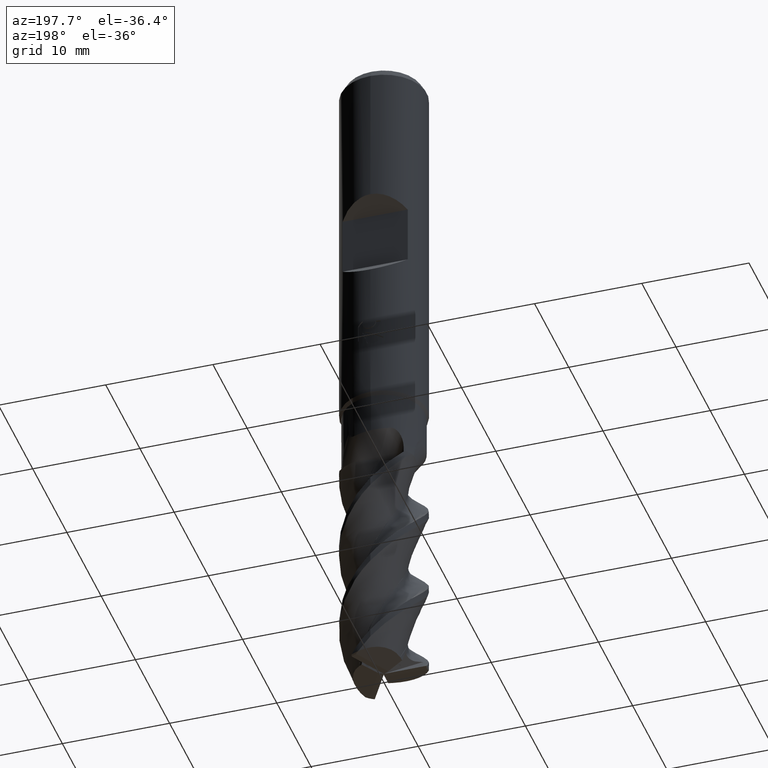
[diagram: clean part render]
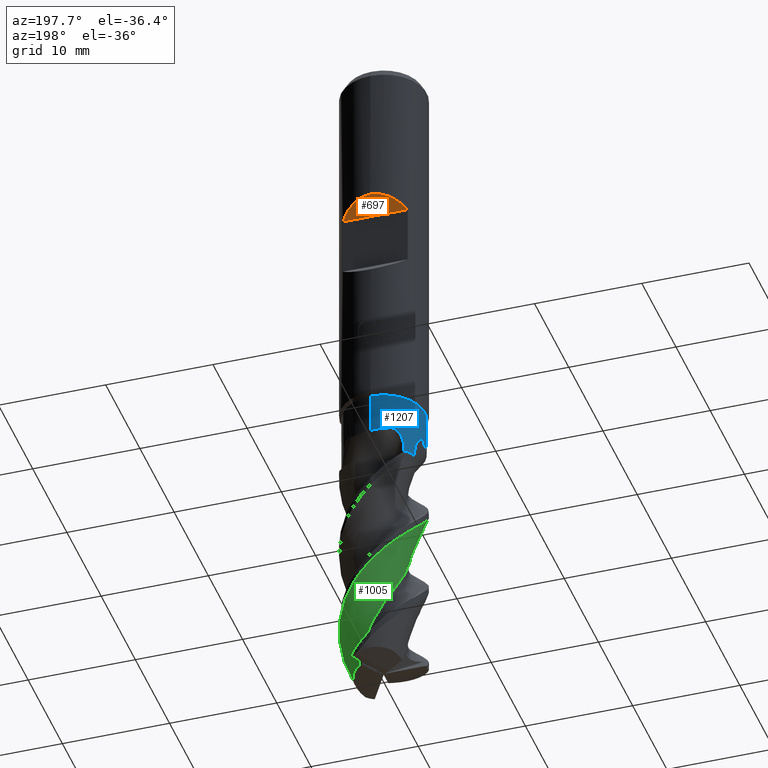
[diagram: same view with three faces highlighted in distinct colors, each labeled with its STEP entity id]
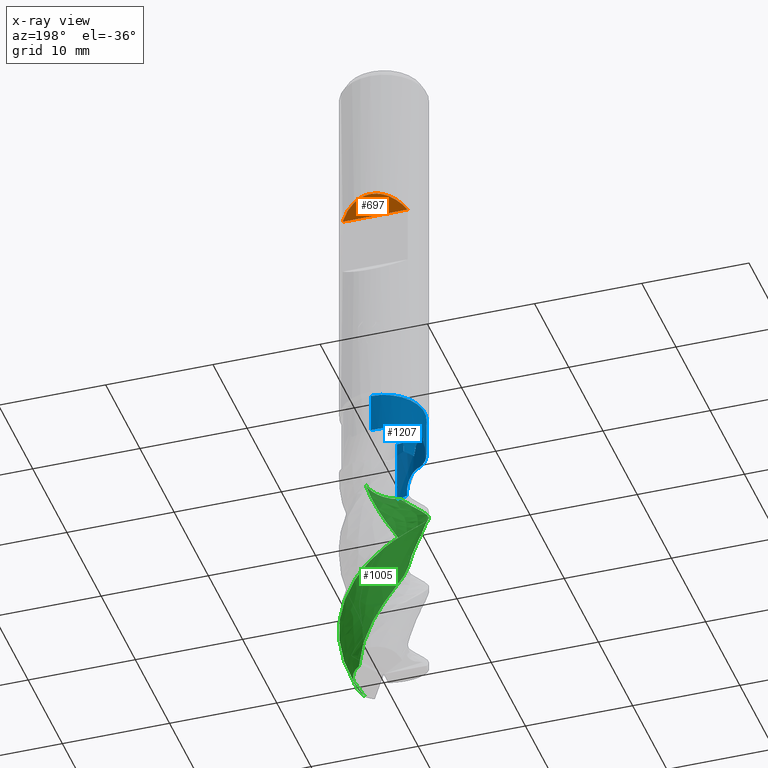
[diagram: x-ray of the same camera — body ghosted, the three highlighted faces saturated]
A machine part, auxiliary view with three faces highlighted in distinct colors.
The next image is the same camera in x-ray (body ghosted, the three faces saturated) — at least one of them is partly hidden behind the body in this view.
Their STEP definitions:

[orange] entity #697 — the highlighted planar face has unit normal (0, -0.7071, 0.7071).
#535=EDGE_CURVE('',#1269,#607,#1479,.T.);
#607=VERTEX_POINT('',#1559);
#697=ADVANCED_FACE('',(#1658),#1659,.F.);
#721=EDGE_CURVE('',#607,#1305,#1683,.T.);
#971=EDGE_CURVE('',#1305,#1269,#1953,.T.);
#1269=VERTEX_POINT('',#2281);
#1305=VERTEX_POINT('',#2319);
#1479=ELLIPSE('',#2755,5.65685424949238,4.0);
#1559=CARTESIAN_POINT('',(-4.89842541528951E-016,4.0,-13.85));
#1658=FACE_OUTER_BOUND('',#4517,.T.);
#1659=PLANE('',#4518);
#1683=ELLIPSE('',#4603,5.65685424949238,4.0);
#1953=LINE('',#6873,#6874);
#2281=CARTESIAN_POINT('',(3.03973683071413,2.6,-15.25));
#2319=CARTESIAN_POINT('',(-3.03973683071413,2.6,-15.25));
#2755=AXIS2_PLACEMENT_3D('',#10703,#10704,#10705);
#4517=EDGE_LOOP('',(#10900,#10901,#10902));
#4518=AXIS2_PLACEMENT_3D('',#10903,#10904,#10905);
#4603=AXIS2_PLACEMENT_3D('',#10913,#10914,#10915);
#6873=CARTESIAN_POINT('',(-4.0,2.6,-15.25));
#6874=VECTOR('',#11142,1.0);
#10703=CARTESIAN_POINT('',(0.0,0.0,-17.85));
#10704=DIRECTION('',(0.0,-0.707106781186547,0.707106781186548));
#10705=DIRECTION('',(0.0,0.707106781186548,0.707106781186547));
#10900=ORIENTED_EDGE('',*,*,#535,.F.);
#10901=ORIENTED_EDGE('',*,*,#971,.F.);
#10902=ORIENTED_EDGE('',*,*,#721,.F.);
#10903=CARTESIAN_POINT('',(-4.0,2.6,-15.25));
#10904=DIRECTION('',(0.0,-0.707106781186547,0.707106781186548));
#10905=DIRECTION('',(0.0,-0.707106781186548,-0.707106781186547));
#10913=CARTESIAN_POINT('',(0.0,0.0,-17.85));
#10914=DIRECTION('',(0.0,-0.707106781186547,0.707106781186548));
#10915=DIRECTION('',(0.0,0.707106781186548,0.707106781186547));
#11142=DIRECTION('',(1.0,0.0,0.0));

[blue] entity #1207 — the highlighted cylindrical surface (partial cylindrical patch) has radius 3.7999 mm, axis along (-0, -0, 1).
#559=EDGE_CURVE('',#1003,#1297,#1506,.T.);
#595=EDGE_CURVE('',#1363,#695,#1545,.T.);
#689=EDGE_CURVE('',#811,#1141,#1649,.T.);
#695=VERTEX_POINT('',#1656);
#701=EDGE_CURVE('',#985,#935,#1663,.T.);
#719=VERTEX_POINT('',#1681);
#731=EDGE_CURVE('',#787,#935,#1693,.T.);
#733=EDGE_CURVE('',#787,#1003,#1695,.T.);
#749=EDGE_CURVE('',#795,#1363,#1711,.T.);
#783=EDGE_CURVE('',#1015,#719,#1748,.T.);
#787=VERTEX_POINT('',#1753);
#795=VERTEX_POINT('',#1761);
#811=VERTEX_POINT('',#1779);
#899=EDGE_CURVE('',#1401,#985,#1877,.T.);
#919=EDGE_CURVE('',#695,#1401,#1899,.T.);
#923=EDGE_CURVE('',#1297,#1015,#1903,.T.);
#925=EDGE_CURVE('',#719,#811,#1905,.T.);
#935=VERTEX_POINT('',#1916);
#985=VERTEX_POINT('',#1969);
#1003=VERTEX_POINT('',#1989);
#1015=VERTEX_POINT('',#2002);
#1109=EDGE_CURVE('',#795,#1141,#2103,.T.);
#1141=VERTEX_POINT('',#2137);
#1207=ADVANCED_FACE('',(#2210),#2211,.T.);
#1297=VERTEX_POINT('',#2311);
#1363=VERTEX_POINT('',#2381);
#1401=VERTEX_POINT('',#2423);
#1506=CIRCLE('',#3178,3.79995);
#1545=B_SPLINE_CURVE_WITH_KNOTS('',3,(#3273,#3274,#3275,#3276,#3277,#3278,#3279,#3280,#3281,#3282,#3283,#3284,#3285,#3286,#3287,#3288,#3289,#3290,#3291,#3292,#3293,#3294,#3295,#3296,#3297,#3298,#3299,#3300,#3301,#3302,#3303,#3304,#3305,#3306,#3307,#3308,#3309,#3310,#3311,#3312,#3313,#3314,#3315,#3316,#3317,#3318),.UNSPECIFIED.,.F.,.F.,(4,2,2,2,2,2,2,2,2,2,2,2,2,2,2,2,2,2,2,2,2,2,4),(0.0,0.0140135506046026,0.0318055990419419,0.0638920282870153,0.14666815466856,0.419842417646123,0.8158473403293,0.844306978690713,0.855388974459272,0.862046211922056,0.869098029826524,0.878400082206631,0.898435346032748,0.991463243754957,1.20059907731097,1.29118879637109,1.31642152759826,1.32992720589609,1.33950535108486,1.34873511341723,1.3613255682747,1.38559028642241,1.44193635661762),.UNSPECIFIED.);
#1649=B_SPLINE_CURVE_WITH_KNOTS('',3,(#4504,#4505,#4506,#4507),.UNSPECIFIED.,.F.,.F.,(4,4),(0.0,0.607011260716469),.UNSPECIFIED.);
#1656=CARTESIAN_POINT('',(-3.7759634199941,0.426286585956498,-39.3041900383537));
#1663=B_SPLINE_CURVE_WITH_KNOTS('',3,(#4524,#4525,#4526,#4527),.UNSPECIFIED.,.F.,.F.,(4,4),(0.0,0.607011260721764),.UNSPECIFIED.);
#1681=CARTESIAN_POINT('',(-1.43957113661505,3.51671081340574,-39.6409361429437));
#1693=CIRCLE('',#4616,3.79995);
#1695=LINE('',#4619,#4620);
#1711=B_SPLINE_CURVE_WITH_KNOTS('',3,(#4660,#4661,#4662,#4663),.UNSPECIFIED.,.F.,.F.,(4,4),(0.0,1.59212349444502),.UNSPECIFIED.);
#1748=B_SPLINE_CURVE_WITH_KNOTS('',3,(#5727,#5728,#5729,#5730,#5731,#5732,#5733,#5734,#5735,#5736,#5737,#5738,#5739,#5740,#5741,#5742),.UNSPECIFIED.,.F.,.F.,(4,2,2,2,2,2,2,4),(0.0,0.212766733290529,0.390872063599471,0.60246557049721,0.962944607239631,1.65607366633172,2.4492128772097,3.24473154866353),.UNSPECIFIED.);
#1753=CARTESIAN_POINT('',(4.65342320597142E-016,-3.79995,-42.0));
#1761=CARTESIAN_POINT('',(-3.34588385674534,1.80129986944732,-41.9999999999986));
#1779=CARTESIAN_POINT('',(-2.6847177655753,2.68922117381676,-41.3930935333593));
#1877=B_SPLINE_CURVE_WITH_KNOTS('',3,(#6464,#6465,#6466,#6467,#6468,#6469,#6470,#6471,#6472,#6473,#6474,#6475,#6476,#6477),.UNSPECIFIED.,.F.,.F.,(4,2,2,2,2,2,4),(0.0,0.361693846908143,0.675171033089231,1.02290429390228,1.51853605051859,2.08757149671043,2.68654885091507),.UNSPECIFIED.);
#1899=B_SPLINE_CURVE_WITH_KNOTS('',3,(#6552,#6553,#6554,#6555,#6556,#6557,#6558,#6559,#6560,#6561,#6562,#6563,#6564,#6565,#6566,#6567),.UNSPECIFIED.,.F.,.F.,(4,2,2,2,2,2,2,4),(0.0,0.212766733283645,0.390872063581755,0.60246557046743,0.962944607194505,1.6560736662815,2.44921287715362,3.24473154860149),.UNSPECIFIED.);
#1903=LINE('',#6588,#6589);
#1905=B_SPLINE_CURVE_WITH_KNOTS('',3,(#6592,#6593,#6594,#6595,#6596,#6597,#6598,#6599,#6600,#6601,#6602,#6603,#6604,#6605),.UNSPECIFIED.,.F.,.F.,(4,2,2,2,2,2,4),(0.0,0.361693846908453,0.675171033089642,1.02290429390244,1.51853605051927,2.08757149671173,2.68654885091676),.UNSPECIFIED.);
#1916=CARTESIAN_POINT('',(-0.975374807084233,-3.67263719800982,-41.9999999999986));
#1969=CARTESIAN_POINT('',(-0.986574970132658,-3.66964437388799,-41.3930935333567));
#1989=CARTESIAN_POINT('',(4.65344291420734E-016,-3.79995,-36.0));
#2002=CARTESIAN_POINT('',(-9.06048273356099E-014,3.79995,-39.7642022869418));
#2103=CIRCLE('',#8114,3.79995);
#2137=CARTESIAN_POINT('',(-2.69290970881802,2.68101796015126,-42.0));
#2210=FACE_OUTER_BOUND('',#9906,.T.);
#2211=CYLINDRICAL_SURFACE('',#9907,3.79995);
#2311=CARTESIAN_POINT('',(0.0,3.79995,-36.0));
#2381=CARTESIAN_POINT('',(-3.43910357671164,1.61622603343382,-40.9999261305378));
#2423=CARTESIAN_POINT('',(-2.32577533386529,-3.00506058156633,-39.6409361429411));
#3178=AXIS2_PLACEMENT_3D('',#10739,#10740,#10741);
#3273=CARTESIAN_POINT('',(-3.43910357671164,1.61622603343381,-40.9999261305378));
#3274=CARTESIAN_POINT('',(-3.43741001612009,1.61982969416399,-40.997483706029));
#3275=CARTESIAN_POINT('',(-3.43597342159946,1.62287233595907,-40.9943292123187));
#3276=CARTESIAN_POINT('',(-3.43323260199738,1.62866410007064,-40.9858818845588));
#3277=CARTESIAN_POINT('',(-3.43212558370448,1.63099278416807,-40.980416682831));
#3278=CARTESIAN_POINT('',(-3.42987801262817,1.63571640113547,-40.9646366983609));
#3279=CARTESIAN_POINT('',(-3.42931903022369,1.63688456574695,-40.9531991018396));
#3280=CARTESIAN_POINT('',(-3.42885599338317,1.63785444378145,-40.9149708166322));
#3281=CARTESIAN_POINT('',(-3.43126418998558,1.63281504455996,-40.8830151863533));
#3282=CARTESIAN_POINT('',(-3.44275009095487,1.60857563395412,-40.7676689959154));
#3283=CARTESIAN_POINT('',(-3.4634976671998,1.56492702654931,-40.6459317044497));
#3284=CARTESIAN_POINT('',(-3.53311828420024,1.40271430721777,-40.2932681566896));
#3285=CARTESIAN_POINT('',(-3.58689184032959,1.26555950913241,-40.0515188633501));
#3286=CARTESIAN_POINT('',(-3.6389215343983,1.09453813263536,-39.7995037066955));
#3287=CARTESIAN_POINT('',(-3.6423829043483,1.08296567552555,-39.782658314755));
#3288=CARTESIAN_POINT('',(-3.64714615509507,1.0667555238026,-39.7593558378089));
#3289=CARTESIAN_POINT('',(-3.64847652387727,1.06219665551279,-39.752834157187));
#3290=CARTESIAN_POINT('',(-3.650598155027,1.05487501475981,-39.7424116015566));
#3291=CARTESIAN_POINT('',(-3.65139265523271,1.05212162788837,-39.738503630663));
#3292=CARTESIAN_POINT('',(-3.6530250543637,1.04644025175253,-39.7304638140017));
#3293=CARTESIAN_POINT('',(-3.65386280105158,1.04351135456267,-39.7263320997345));
#3294=CARTESIAN_POINT('',(-3.65580088307509,1.03670444753708,-39.7167602113279));
#3295=CARTESIAN_POINT('',(-3.65689985032965,1.03282130624775,-39.7113225098206));
#3296=CARTESIAN_POINT('',(-3.66035435849068,1.02053999647051,-39.6941971987268));
#3297=CARTESIAN_POINT('',(-3.66269792501603,1.01209754805324,-39.6825314274365));
#3298=CARTESIAN_POINT('',(-3.67582166337158,0.964171504845633,-39.6169253786723));
#3299=CARTESIAN_POINT('',(-3.68636607182641,0.92313768870325,-39.5630980436754));
#3300=CARTESIAN_POINT('',(-3.71883389909427,0.786946433797056,-39.3937655687126));
#3301=CARTESIAN_POINT('',(-3.73569563601697,0.699845541674345,-39.2996172150915));
#3302=CARTESIAN_POINT('',(-3.75334460048856,0.594198912377062,-39.2061773752463));
#3303=CARTESIAN_POINT('',(-3.76076574807013,0.546067983516484,-39.1667910236803));
#3304=CARTESIAN_POINT('',(-3.7681923965976,0.490403653435894,-39.1411384575333));
#3305=CARTESIAN_POINT('',(-3.76997334112978,0.476550015673757,-39.1360904919565));
#3306=CARTESIAN_POINT('',(-3.77247686830508,0.456168319019429,-39.1336517131924));
#3307=CARTESIAN_POINT('',(-3.77335811513707,0.448817475125447,-39.1337418903355));
#3308=CARTESIAN_POINT('',(-3.77474359043701,0.436984286736015,-39.1368991933857));
#3309=CARTESIAN_POINT('',(-3.77526345771143,0.432460727961651,-39.139047035755));
#3310=CARTESIAN_POINT('',(-3.77616149675967,0.424546383303431,-39.1451613755404));
#3311=CARTESIAN_POINT('',(-3.77651561805822,0.421374544628474,-39.1488625570011));
#3312=CARTESIAN_POINT('',(-3.77719093747047,0.415284390425423,-39.1587716447592));
#3313=CARTESIAN_POINT('',(-3.77744451150705,0.412959267974096,-39.1652717332362));
#3314=CARTESIAN_POINT('',(-3.77793468388608,0.408458579639979,-39.1844169296781));
#3315=CARTESIAN_POINT('',(-3.77797224829268,0.408100678705678,-39.1985505902176));
#3316=CARTESIAN_POINT('',(-3.77772715379485,0.410365800421935,-39.2414658569395));
#3317=CARTESIAN_POINT('',(-3.77688672845039,0.418108099766377,-39.275319484535));
#3318=CARTESIAN_POINT('',(-3.77596341999411,0.426286585956505,-39.3041900383537));
#4504=CARTESIAN_POINT('',(-2.68471776557528,2.68922117381679,-41.3930935333593));
#4505=CARTESIAN_POINT('',(-2.68758291933732,2.68636081808223,-41.5953901126591));
#4506=CARTESIAN_POINT('',(-2.69031421460228,2.68362496677211,-41.7976962715622));
#4507=CARTESIAN_POINT('',(-2.69290970881802,2.68101796015126,-42.0000000000003));
#4524=CARTESIAN_POINT('',(-0.986574970132655,-3.669644373888,-41.3930935333567));
#4525=CARTESIAN_POINT('',(-0.982665252521606,-3.67069549196439,-41.5953901126582));
#4526=CARTESIAN_POINT('',(-0.978930288153597,-3.67169293739404,-41.7976962715609));
#4527=CARTESIAN_POINT('',(-0.975374807084236,-3.67263719800982,-41.9999999999986));
#4616=AXIS2_PLACEMENT_3D('',#10917,#10918,#10919);
#4619=CARTESIAN_POINT('',(4.65342320597142E-016,-3.79995,-39.0));
#4620=VECTOR('',#10920,1.0);
#4660=CARTESIAN_POINT('',(-3.34588385674534,1.80129986944732,-41.9999999999986));
#4661=CARTESIAN_POINT('',(-3.4137948732671,1.67515631182577,-41.4889944236088));
#4662=CARTESIAN_POINT('',(-3.43466950103465,1.62566112802627,-41.1973359331526));
#4663=CARTESIAN_POINT('',(-3.43910357622524,1.61622603446881,-40.9999261321219));
#5727=CARTESIAN_POINT('',(2.25715672180603,3.05693695317811,-39.3041900368416));
#5728=CARTESIAN_POINT('',(2.24893669521482,3.06300639084004,-39.3743723554434));
#5729=CARTESIAN_POINT('',(2.23301258068406,3.07476318239142,-39.4336972372792));
#5730=CARTESIAN_POINT('',(2.18832004303366,3.10668661205878,-39.5266258345144));
#5731=CARTESIAN_POINT('',(2.16224974156453,3.12502367900786,-39.5624196782732));
#5732=CARTESIAN_POINT('',(2.09262034983031,3.17216718126659,-39.6294541428655));
#5733=CARTESIAN_POINT('',(2.04846231649337,3.20099286163872,-39.6567708890188));
#5734=CARTESIAN_POINT('',(1.92401704254904,3.27815368587136,-39.7143200498526));
#5735=CARTESIAN_POINT('',(1.82868670696366,3.33314618050331,-39.7383986523814));
#5736=CARTESIAN_POINT('',(1.51669646311954,3.49174221195503,-39.7878966395567));
#5737=CARTESIAN_POINT('',(1.24039025633775,3.60857388037931,-39.7983333521388));
#5738=CARTESIAN_POINT('',(0.516596042413404,3.7856125604891,-39.7922165145105));
#5739=CARTESIAN_POINT('',(0.116423947431709,3.81903111380916,-39.7734899987666));
#5740=CARTESIAN_POINT('',(-0.679911956793805,3.7599505264744,-39.720535519818));
#5741=CARTESIAN_POINT('',(-1.0709869047417,3.66759135200266,-39.6856570058483));
#5742=CARTESIAN_POINT('',(-1.43957113661502,3.51671081340574,-39.6409361429438));
#6464=CARTESIAN_POINT('',(-2.32577533388048,-3.00506058155458,-39.6409361432102));
#6465=CARTESIAN_POINT('',(-2.23570915571973,-3.07476756079784,-39.6013779943688));
#6466=CARTESIAN_POINT('',(-2.13910363235008,-3.14298007106476,-39.5807710740648));
#6467=CARTESIAN_POINT('',(-1.94957980869785,-3.26337652433712,-39.5916463082541));
#6468=CARTESIAN_POINT('',(-1.86277829201517,-3.31341627340326,-39.6163119926216));
#6469=CARTESIAN_POINT('',(-1.6854562418128,-3.40734408379137,-39.7068059622867));
#6470=CARTESIAN_POINT('',(-1.59985392537605,-3.44776471054839,-39.7746458616547));
#6471=CARTESIAN_POINT('',(-1.41403207579706,-3.5290709905646,-39.9691833466285));
#6472=CARTESIAN_POINT('',(-1.32281665239899,-3.56310872765329,-40.108791350802));
#6473=CARTESIAN_POINT('',(-1.16610711741986,-3.61768993068281,-40.4238668812002));
#6474=CARTESIAN_POINT('',(-1.10322221990778,-3.63655433582404,-40.6076689237953));
#6475=CARTESIAN_POINT('',(-1.01492400076032,-3.66220872052343,-40.9890030643804));
#6476=CARTESIAN_POINT('',(-0.990471658222054,-3.66859675876671,-41.1914711328735));
#6477=CARTESIAN_POINT('',(-0.986574970229237,-3.66964437386202,-41.3930935333571));
#6552=CARTESIAN_POINT('',(-3.77596342012264,0.426286584817911,-39.3041900368392));
#6553=CARTESIAN_POINT('',(-3.77710969402892,0.416133114139497,-39.3743723554387));
#6554=CARTESIAN_POINT('',(-3.77932931691399,0.396464030648005,-39.4336972372751));
#6555=CARTESIAN_POINT('',(-3.78462954915675,0.341797442848452,-39.526625834512));
#6556=CARTESIAN_POINT('',(-3.787474764231,0.310051366017076,-39.5624196782708));
#6557=CARTESIAN_POINT('',(-3.79348753894329,0.226178792796305,-39.6294541428627));
#6558=CARTESIAN_POINT('',(-3.79637229375843,0.173523973959931,-39.6567708890159));
#6559=CARTESIAN_POINT('',(-3.80097289074879,0.0271707932234587,-39.7143200498511));
#6560=CARTESIAN_POINT('',(-3.80093262032454,-0.0828839464622846,-39.7383986523794));
#6561=CARTESIAN_POINT('',(-3.78228569057927,-0.432373439086208,-39.7878966395541));
#6562=CARTESIAN_POINT('',(-3.74531178001028,-0.730077467594786,-39.7983333521362));
#6563=CARTESIAN_POINT('',(-3.53673466747562,-1.44542098402026,-39.7922165145079));
#6564=CARTESIAN_POINT('',(-3.36558993611768,-1.80868946082002,-39.773489998764));
#6565=CARTESIAN_POINT('',(-2.91625669450255,-2.46879629015748,-39.7205355198153));
#6566=CARTESIAN_POINT('',(-2.64073382916357,-2.76129754262811,-39.6856570058456));
#6567=CARTESIAN_POINT('',(-2.32577533386532,-3.00506058156631,-39.6409361429411));
#6588=CARTESIAN_POINT('',(-4.65346262244326E-016,3.79995,-39.0));
#6589=VECTOR('',#11116,1.0);
#6592=CARTESIAN_POINT('',(-1.43957113659726,3.51671081341303,-39.6409361432129));
#6593=CARTESIAN_POINT('',(-1.54497224052346,3.47356470472563,-39.6013779943714));
#6594=CARTESIAN_POINT('',(-1.65234876895528,3.4240081224751,-39.5807710740674));
#6595=CARTESIAN_POINT('',(-1.85137706784069,3.32007390320616,-39.5916463082568));
#6596=CARTESIAN_POINT('',(-1.93811352007225,3.26992145920507,-39.6163119926242));
#6597=CARTESIAN_POINT('',(-2.10811841509159,3.1633199642726,-39.7068059622894));
#6598=CARTESIAN_POINT('',(-2.18592486291846,3.10939649699401,-39.7746458616575));
#6599=CARTESIAN_POINT('',(-2.34924909168909,2.98912319468859,-39.9691833466312));
#6600=CARTESIAN_POINT('',(-2.42433434839428,2.92714718935327,-40.1087913508047));
#6601=CARTESIAN_POINT('',(-2.5499578242765,2.81872335256089,-40.4238668812028));
#6602=CARTESIAN_POINT('',(-2.59773732711214,2.77369563637166,-40.6076689237978));
#6603=CARTESIAN_POINT('',(-2.66410378555402,2.7100543278307,-40.9890030643831));
#6604=CARTESIAN_POINT('',(-2.68186216022217,2.69207199713217,-41.1914711328763));
#6605=CARTESIAN_POINT('',(-2.68471776550451,2.68922117388743,-41.3930935333598));
#8114=AXIS2_PLACEMENT_3D('',#11287,#11288,#11289);
#9906=EDGE_LOOP('',(#11400,#11401,#11402,#11403,#11404,#11405,#11406,#11407,#11408,#11409,#11410,#11411,#11412));
#9907=AXIS2_PLACEMENT_3D('',#11413,#11414,#11415);
#10739=CARTESIAN_POINT('',(0.0,0.0,-36.0));
#10740=DIRECTION('',(0.0,0.0,-1.0));
#10741=DIRECTION('',(0.0,1.0,0.0));
#10917=CARTESIAN_POINT('',(0.0,0.0,-42.0));
#10918=DIRECTION('',(0.0,0.0,-1.0));
#10919=DIRECTION('',(0.0,1.0,0.0));
#10920=DIRECTION('',(-0.0,-0.0,1.0));
#11116=DIRECTION('',(0.0,0.0,-1.0));
#11287=CARTESIAN_POINT('',(0.0,0.0,-42.0));
#11288=DIRECTION('',(0.0,0.0,-1.0));
#11289=DIRECTION('',(0.0,1.0,0.0));
#11400=ORIENTED_EDGE('',*,*,#923,.T.);
#11401=ORIENTED_EDGE('',*,*,#783,.T.);
#11402=ORIENTED_EDGE('',*,*,#925,.T.);
#11403=ORIENTED_EDGE('',*,*,#689,.T.);
#11404=ORIENTED_EDGE('',*,*,#1109,.F.);
#11405=ORIENTED_EDGE('',*,*,#749,.T.);
#11406=ORIENTED_EDGE('',*,*,#595,.T.);
#11407=ORIENTED_EDGE('',*,*,#919,.T.);
#11408=ORIENTED_EDGE('',*,*,#899,.T.);
#11409=ORIENTED_EDGE('',*,*,#701,.T.);
#11410=ORIENTED_EDGE('',*,*,#731,.F.);
#11411=ORIENTED_EDGE('',*,*,#733,.T.);
#11412=ORIENTED_EDGE('',*,*,#559,.T.);
#11413=CARTESIAN_POINT('',(0.0,0.0,-39.0));
#11414=DIRECTION('',(-0.0,-0.0,1.0));
#11415=DIRECTION('',(0.0,1.0,0.0));

[green] entity #1005 — the highlighted face is a freeform B-spline surface patch.
#657=EDGE_CURVE('',#1307,#939,#1614,.T.);
#685=EDGE_CURVE('',#1307,#709,#1645,.T.);
#709=VERTEX_POINT('',#1671);
#817=VERTEX_POINT('',#1785);
#847=VERTEX_POINT('',#1817);
#933=EDGE_CURVE('',#817,#1227,#1914,.T.);
#939=VERTEX_POINT('',#1920);
#997=EDGE_CURVE('',#1227,#847,#1982,.T.);
#1005=ADVANCED_FACE('',(#1991),#1992,.T.);
#1011=EDGE_CURVE('',#847,#709,#1998,.T.);
#1127=EDGE_CURVE('',#939,#817,#2123,.T.);
#1227=VERTEX_POINT('',#2234);
#1307=VERTEX_POINT('',#2321);
#1614=B_SPLINE_CURVE_WITH_KNOTS('',3,(#3880,#3881,#3882,#3883,#3884,#3885,#3886,#3887,#3888,#3889,#3890,#3891),.UNSPECIFIED.,.F.,.F.,(4,2,2,2,2,4),(0.0,1.18920040402983,2.29786910684906,3.46950499192522,4.30508404240267,5.21901623370384),.UNSPECIFIED.);
#1645=B_SPLINE_CURVE_WITH_KNOTS('',3,(#4454,#4455,#4456,#4457,#4458,#4459,#4460,#4461,#4462,#4463,#4464,#4465,#4466,#4467,#4468,#4469,#4470,#4471,#4472,#4473,#4474,#4475,#4476,#4477,#4478,#4479,#4480,#4481,#4482,#4483,#4484,#4485,#4486,#4487,#4488,#4489,#4490,#4491,#4492,#4493,#4494,#4495),.UNSPECIFIED.,.F.,.F.,(4,2,2,2,2,2,2,2,2,2,2,2,2,2,2,2,2,2,2,2,4),(0.0,1.96002317035969,2.79951533913145,4.8457006803169,5.63728254342971,7.64417013685095,8.09698611720809,9.81930929681338,10.8335941940465,12.7666662726381,12.8188379563315,14.1024987007819,14.7575773110039,15.1105824049637,16.5308149826077,17.1155973642368,18.6108540103891,19.2000952662199,20.0998371200541,20.3365278369933,21.0120255307278),.UNSPECIFIED.);
#1671=CARTESIAN_POINT('',(2.03299663631138,-0.989368116435312,-42.0));
#1785=CARTESIAN_POINT('',(-7.69077798660157E-016,3.99995612352462,-54.2910518919259));
#1817=CARTESIAN_POINT('',(1.9452174780448,-1.60632266759459,-42.0));
#1914=B_SPLINE_CURVE_WITH_KNOTS('',3,(#6620,#6621,#6622,#6623,#6624,#6625,#6626,#6627,#6628,#6629,#6630,#6631,#6632,#6633,#6634,#6635,#6636,#6637,#6638,#6639,#6640,#6641,#6642,#6643,#6644,#6645,#6646,#6647,#6648,#6649,#6650,#6651,#6652,#6653,#6654,#6655,#6656,#6657,#6658,#6659,#6660,#6661,#6662,#6663,#6664,#6665,#6666,#6667,#6668,#6669,#6670,#6671),.UNSPECIFIED.,.F.,.F.,(4,2,2,2,2,2,2,2,2,2,2,2,2,2,2,2,2,2,2,2,2,2,2,2,2,4),(0.0,1.57995618751286,2.34788937361067,4.01810554036891,5.12996264143691,6.12659218377609,7.25479107126894,7.62947040050048,8.38034993338869,8.92728406303593,10.0608056242704,10.807088217163,11.3429302161368,12.4520703563462,13.1772147659352,13.8566312200191,14.3646988974927,15.0962472152878,15.5436729099077,15.9831879256013,16.4779934481207,16.6436608121093,16.9584278395634,17.7036646967692,17.9971989238985,18.4457839160853),.UNSPECIFIED.);
#1920=CARTESIAN_POINT('',(2.69846547772458,-2.952674036719,-63.8973059111609));
#1982=B_SPLINE_CURVE_WITH_KNOTS('',3,(#6927,#6928,#6929,#6930,#6931,#6932,#6933,#6934,#6935,#6936),.UNSPECIFIED.,.F.,.F.,(4,2,2,2,4),(0.0,1.29192723174741,2.58378329638331,3.4470778374625,4.31035240653065),.UNSPECIFIED.);
#1991=FACE_OUTER_BOUND('',#6945,.T.);
#1992=B_SPLINE_SURFACE_WITH_KNOTS('',3,3,((#6946,#6947,#6948,#6949,#6950,#6951,#6952,#6953,#6954,#6955,#6956,#6957,#6958,#6959,#6960,#6961,#6962,#6963,#6964,#6965,#6966,#6967,#6968,#6969,#6970,#6971,#6972,#6973,#6974,#6975,#6976,#6977,#6978,#6979,#6980,#6981,#6982,#6983,#6984,#6985,#6986,#6987,#6988,#6989,#6990,#6991,#6992,#6993,#6994,#6995,#6996,#6997,#6998,#6999),(#7000,#7001,#7002,#7003,#7004,#7005,#7006,#7007,#7008,#7009,#7010,#7011,#7012,#7013,#7014,#7015,#7016,#7017,#7018,#7019,#7020,#7021,#7022,#7023,#7024,#7025,#7026,#7027,#7028,#7029,#7030,#7031,#7032,#7033,#7034,#7035,#7036,#7037,#7038,#7039,#7040,#7041,#7042,#7043,#7044,#7045,#7046,#7047,#7048,#7049,#7050,#7051,#7052,#7053),(#7054,#7055,#7056,#7057,#7058,#7059,#7060,#7061,#7062,#7063,#7064,#7065,#7066,#7067,#7068,#7069,#7070,#7071,#7072,#7073,#7074,#7075,#7076,#7077,#7078,#7079,#7080,#7081,#7082,#7083,#7084,#7085,#7086,#7087,#7088,#7089,#7090,#7091,#7092,#7093,#7094,#7095,#7096,#7097,#7098,#7099,#7100,#7101,#7102,#7103,#7104,#7105,#7106,#7107),(#7108,#7109,#7110,#7111,#7112,#7113,#7114,#7115,#7116,#7117,#7118,#7119,#7120,#7121,#7122,#7123,#7124,#7125,#7126,#7127,#7128,#7129,#7130,#7131,#7132,#7133,#7134,#7135,#7136,#7137,#7138,#7139,#7140,#7141,#7142,#7143,#7144,#7145,#7146,#7147,#7148,#7149,#7150,#7151,#7152,#7153,#7154,#7155,#7156,#7157,#7158,#7159,#7160,#7161),(#7162,#7163,#7164,#7165,#7166,#7167,#7168,#7169,#7170,#7171,#7172,#7173,#7174,#7175,#7176,#7177,#7178,#7179,#7180,#7181,#7182,#7183,#7184,#7185,#7186,#7187,#7188,#7189,#7190,#7191,#7192,#7193,#7194,#7195,#7196,#7197,#7198,#7199,#7200,#7201,#7202,#7203,#7204,#7205,#7206,#7207,#7208,#7209,#7210,#7211,#7212,#7213,#7214,#7215),(#7216,#7217,#7218,#7219,#7220,#7221,#7222,#7223,#7224,#7225,#7226,#7227,#7228,#7229,#7230,#7231,#7232,#7233,#7234,#7235,#7236,#7237,#7238,#7239,#7240,#7241,#7242,#7243,#7244,#7245,#7246,#7247,#7248,#7249,#7250,#7251,#7252,#7253,#7254,#7255,#7256,#7257,#7258,#7259,#7260,#7261,#7262,#7263,#7264,#7265,#7266,#7267,#7268,#7269),(#7270,#7271,#7272,#7273,#7274,#7275,#7276,#7277,#7278,#7279,#7280,#7281,#7282,#7283,#7284,#7285,#7286,#7287,#7288,#7289,#7290,#7291,#7292,#7293,#7294,#7295,#7296,#7297,#7298,#7299,#7300,#7301,#7302,#7303,#7304,#7305,#7306,#7307,#7308,#7309,#7310,#7311,#7312,#7313,#7314,#7315,#7316,#7317,#7318,#7319,#7320,#7321,#7322,#7323)),.UNSPECIFIED.,.F.,.F.,.F.,(4,1,1,1,4),(4,1,2,1,2,1,2,1,1,2,1,2,1,2,1,2,1,2,1,2,1,2,1,2,1,2,1,2,1,2,1,2,1,2,1,4),(-1.379010217161,-1.03425766287075,-0.689505108580499,-0.34475255429025,0.0),(0.0,0.596702157013119,1.19340431402624,1.79010647103936,2.38680862805248,3.58021294207871,4.77361725610495,5.66867049162463,6.56372372714431,7.16042588415743,8.35383019818367,9.5472345122099,10.7406388262361,11.9340431402624,13.1274474542886,14.3208517683149,15.5142560823411,16.7076603963673,17.9010647103936,19.0944690244198,20.287873338446,21.4812776524723,22.6746819664985,23.8680862805248,25.061490594551,26.2548949085772,27.4482992226035,28.6417035366297,29.8351078506559,31.0285121646822,32.2219164787084,33.4153207927347,34.6087251067609,35.8021294207871,36.9955337348134,38.1889380488396),.UNSPECIFIED.);
#1998=B_SPLINE_CURVE_WITH_KNOTS('',3,(#7334,#7335,#7336,#7337,#7338,#7339,#7340,#7341,#7342,#7343),.UNSPECIFIED.,.F.,.F.,(4,2,2,2,4),(0.0,1.29192723174741,2.58378329638331,3.4470778374625,4.31035240653065),.UNSPECIFIED.);
#2123=B_SPLINE_CURVE_WITH_KNOTS('',3,(#8562,#8563,#8564,#8565,#8566,#8567,#8568,#8569,#8570,#8571,#8572,#8573,#8574,#8575,#8576,#8577,#8578,#8579,#8580,#8581,#8582,#8583,#8584,#8585,#8586,#8587,#8588,#8589,#8590,#8591,#8592,#8593,#8594,#8595,#8596,#8597,#8598,#8599,#8600,#8601,#8602,#8603,#8604,#8605,#8606,#8607,#8608,#8609,#8610,#8611,#8612,#8613),.UNSPECIFIED.,.F.,.F.,(4,2,2,2,2,2,2,2,2,2,2,2,2,2,2,2,2,2,2,2,2,2,2,2,2,4),(0.0,1.57995618751286,2.34788937361067,4.01810554036891,5.12996264143691,6.12659218377609,7.25479107126894,7.62947040050048,8.38034993338869,8.92728406303593,10.0608056242704,10.807088217163,11.3429302161368,12.4520703563462,13.1772147659352,13.8566312200191,14.3646988974927,15.0962472152878,15.5436729099077,15.9831879256013,16.4779934481207,16.6436608121093,16.9584278395634,17.7036646967692,17.9971989238985,18.4457839160853),.UNSPECIFIED.);
#2234=CARTESIAN_POINT('',(-0.281948274616968,-3.98995052355796,-42.0));
#2321=CARTESIAN_POINT('',(2.01576771456999,1.02382500630078,-63.4433879242293));
#3880=CARTESIAN_POINT('',(1.98717290046284,1.04616663554005,-63.4478045644541));
#3881=CARTESIAN_POINT('',(2.29849334277457,0.805629682795428,-63.3992801032536));
#3882=CARTESIAN_POINT('',(2.56529344276006,0.512069389346785,-63.3718973276027));
#3883=CARTESIAN_POINT('',(2.95706150600284,-0.144693882593644,-63.3683558786338));
#3884=CARTESIAN_POINT('',(3.08379505322925,-0.491016520911925,-63.3889580124213));
#3885=CARTESIAN_POINT('',(3.20419988104459,-1.23492904707732,-63.4759333691215));
#3886=CARTESIAN_POINT('',(3.18775963949809,-1.62067122276847,-63.5432270827445));
#3887=CARTESIAN_POINT('',(3.0395487994471,-2.25613986672631,-63.6881700793818));
#3888=CARTESIAN_POINT('',(2.9430978341228,-2.50946472336646,-63.7564654099629));
#3889=CARTESIAN_POINT('',(2.67997183361857,-3.0061152806927,-63.9111918702191));
#3890=CARTESIAN_POINT('',(2.50850405514683,-3.24457367916222,-63.9981808826006));
#3891=CARTESIAN_POINT('',(2.31055228751493,-3.45793402933306,-64.0885447654428));
#4454=CARTESIAN_POINT('',(2.2258557536096,0.392395291553476,-64.6400898974481));
#4455=CARTESIAN_POINT('',(2.16844115696098,0.714847034008062,-64.0747731947383));
#4456=CARTESIAN_POINT('',(2.04471680983743,1.01903385639634,-63.4671515794987));
#4457=CARTESIAN_POINT('',(1.78023418586607,1.40063911063307,-62.6542556217724));
#4458=CARTESIAN_POINT('',(1.69660892878048,1.49949438902479,-62.4416615278566));
#4459=CARTESIAN_POINT('',(1.36782863712886,1.8286788299751,-61.6324979956486));
#4460=CARTESIAN_POINT('',(1.08750858991569,2.01067880484557,-61.0118486138878));
#4461=CARTESIAN_POINT('',(0.653219291321811,2.16822722370999,-60.2097547816635));
#4462=CARTESIAN_POINT('',(0.534315375222693,2.1998364269449,-60.0077604091196));
#4463=CARTESIAN_POINT('',(0.0900813190610817,2.28108678333473,-59.2197164337043));
#4464=CARTESIAN_POINT('',(-0.25906322726128,2.27702697683294,-58.5717030219219));
#4465=CARTESIAN_POINT('',(-0.694531739996108,2.15294231858925,-57.794967209797));
#4466=CARTESIAN_POINT('',(-0.769535571712464,2.12689837713229,-57.6634697619053));
#4467=CARTESIAN_POINT('',(-1.14093492321558,1.97605497483704,-56.9714896079726));
#4468=CARTESIAN_POINT('',(-1.40402263033227,1.80005142953563,-56.3849942343427));
#4469=CARTESIAN_POINT('',(-1.75062312202572,1.44271898130385,-55.5086926905637));
#4470=CARTESIAN_POINT('',(-1.83714696000021,1.32754258297486,-55.2762826991649));
#4471=CARTESIAN_POINT('',(-2.09708286274655,0.903248897109666,-54.4028242956562));
#4472=CARTESIAN_POINT('',(-2.23094349440918,0.555477607313733,-53.7114292080589));
#4473=CARTESIAN_POINT('',(-2.25655349877624,0.134397139463616,-53.0012958224044));
#4474=CARTESIAN_POINT('',(-2.25712473969256,0.123722100443663,-52.9833680307107));
#4475=CARTESIAN_POINT('',(-2.27082932351594,-0.172901119034963,-52.4823521476208));
#4476=CARTESIAN_POINT('',(-2.23162990034029,-0.449493618626465,-51.9715360939115));
#4477=CARTESIAN_POINT('',(-2.10585671620571,-0.834867743957073,-51.2392711246251));
#4478=CARTESIAN_POINT('',(-2.05056297000306,-0.963692437451976,-50.9913433388064));
#4479=CARTESIAN_POINT('',(-1.9436005598704,-1.15690758527706,-50.6152420988666));
#4480=CARTESIAN_POINT('',(-1.90374824295702,-1.22103638488922,-50.4894872554354));
#4481=CARTESIAN_POINT('',(-1.67084563073498,-1.55598763767896,-49.7818891943821));
#4482=CARTESIAN_POINT('',(-1.43074470413734,-1.78167798856436,-49.1705865882762));
#4483=CARTESIAN_POINT('',(-1.03215098834514,-2.01602609595541,-48.3645230746117));
#4484=CARTESIAN_POINT('',(-0.915529193265947,-2.07072139450083,-48.1531619186794));
#4485=CARTESIAN_POINT('',(-0.473783703182273,-2.23535326470542,-47.3312171601324));
#4486=CARTESIAN_POINT('',(-0.131186814473273,-2.28427311543598,-46.688985739457));
#4487=CARTESIAN_POINT('',(0.349498951718823,-2.23759575963571,-45.8579717782741));
#4488=CARTESIAN_POINT('',(0.509271848405645,-2.21001172006649,-45.5898467540723));
#4489=CARTESIAN_POINT('',(0.96798443272273,-2.06320589346033,-44.7291115167262));
#4490=CARTESIAN_POINT('',(1.23349238164757,-1.92014747224528,-44.1743800361885));
#4491=CARTESIAN_POINT('',(1.52691203074127,-1.66892065223285,-43.5144435609039));
#4492=CARTESIAN_POINT('',(1.58291282688014,-1.61552139697462,-43.3860067865271));
#4493=CARTESIAN_POINT('',(1.80140298252814,-1.38452296869415,-42.8356659699992));
#4494=CARTESIAN_POINT('',(1.93341467859672,-1.19319985029193,-42.4100828579882));
#4495=CARTESIAN_POINT('',(2.03299800461074,-0.989365315703695,-41.9999943652908));
#6620=CARTESIAN_POINT('',(2.69650607344267,-2.95446357159584,-63.9));
#6621=CARTESIAN_POINT('',(2.96947882150609,-2.7053220580147,-63.5247976812902));
#6622=CARTESIAN_POINT('',(3.20875919461526,-2.41757148248413,-63.1450737929219));
#6623=CARTESIAN_POINT('',(3.50125301085231,-1.94279336822282,-62.59478187404));
#6624=CARTESIAN_POINT('',(3.58486849454752,-1.7837727165035,-62.4230581840691));
#6625=CARTESIAN_POINT('',(3.81868428002632,-1.25480519412947,-61.8530853750938));
#6626=CARTESIAN_POINT('',(3.92279809666024,-0.873697982253552,-61.4517983346822));
#6627=CARTESIAN_POINT('',(4.00180475070877,-0.2295820595826,-60.792531859855));
#6628=CARTESIAN_POINT('',(4.00858793809692,0.0328292690729241,-60.529373440002));
#6629=CARTESIAN_POINT('',(3.97138366904153,0.533100402420216,-60.0389629381744));
#6630=CARTESIAN_POINT('',(3.93039466543345,0.809505515768607,-59.7701259585404));
#6631=CARTESIAN_POINT('',(3.7386714077699,1.46789971607507,-59.0793547612815));
#6632=CARTESIAN_POINT('',(3.58958323029984,1.8021241303763,-58.7059306020362));
#6633=CARTESIAN_POINT('',(3.33314862807938,2.21462773452142,-58.2180722610383));
#6634=CARTESIAN_POINT('',(3.26425215518407,2.31504224344695,-58.0968970272068));
#6635=CARTESIAN_POINT('',(3.0425208763996,2.60825300423282,-57.7353403319138));
#6636=CARTESIAN_POINT('',(2.87884962040866,2.78808143485096,-57.5028428754184));
#6637=CARTESIAN_POINT('',(2.56242794111463,3.07673421105719,-57.0749249269789));
#6638=CARTESIAN_POINT('',(2.42162163662409,3.18864847463622,-56.8930501702127));
#6639=CARTESIAN_POINT('',(1.96959785550018,3.50111380315277,-56.3341503470639));
#6640=CARTESIAN_POINT('',(1.63389603389764,3.67052407491197,-55.9530932394691));
#6641=CARTESIAN_POINT('',(1.04025642980807,3.87032144791447,-55.3379208297123));
#6642=CARTESIAN_POINT('',(0.799850308596841,3.92725562559468,-55.1012696873747));
#6643=CARTESIAN_POINT('',(0.371316949015049,3.98678839427773,-54.6683494900729));
#6644=CARTESIAN_POINT('',(0.191517907290247,3.99938934451363,-54.485910364999));
#6645=CARTESIAN_POINT('',(-0.358824153854322,4.00107191172145,-53.9259709551499));
#6646=CARTESIAN_POINT('',(-0.732139105394194,3.95056655361803,-53.5446765940473));
#6647=CARTESIAN_POINT('',(-1.33437986001483,3.77893067699492,-52.9311153395694));
#6648=CARTESIAN_POINT('',(-1.64232837905974,3.66812419025033,-52.6172988388942));
#6649=CARTESIAN_POINT('',(-2.29997715734404,3.29299138938161,-51.8517640406427));
#6650=CARTESIAN_POINT('',(-2.59268721810375,3.06812134781838,-51.4753541017486));
#6651=CARTESIAN_POINT('',(-3.04450061125971,2.60892820034011,-50.8317153653652));
#6652=CARTESIAN_POINT('',(-3.21396450030338,2.39692843317077,-50.5736450162491));
#6653=CARTESIAN_POINT('',(-3.57659714375437,1.83401117706441,-49.9112505218498));
#6654=CARTESIAN_POINT('',(-3.73871947580295,1.47422526554168,-49.5098871246731));
#6655=CARTESIAN_POINT('',(-3.91136820501566,0.870326018462489,-48.8728930135102));
#6656=CARTESIAN_POINT('',(-3.95688649857824,0.633624544174124,-48.6317097037319));
#6657=CARTESIAN_POINT('',(-4.00405805599245,0.154483879124258,-48.161012325543));
#6658=CARTESIAN_POINT('',(-4.01099689345017,-0.126631333663458,-47.8903030775545));
#6659=CARTESIAN_POINT('',(-3.93391366585903,-0.810205597199152,-47.1970240019798));
#6660=CARTESIAN_POINT('',(-3.84380906021141,-1.16521389121971,-46.8232568961344));
#6661=CARTESIAN_POINT('',(-3.66068884889836,-1.61667835075212,-46.334073011633));
#6662=CARTESIAN_POINT('',(-3.60935070522023,-1.72835147485713,-46.2118394927869));
#6663=CARTESIAN_POINT('',(-3.44474294469699,-2.04650096001483,-45.8598048837704));
#6664=CARTESIAN_POINT('',(-3.32027675315659,-2.24308133132727,-45.6372131696838));
#6665=CARTESIAN_POINT('',(-2.8344593138896,-2.87764410508621,-44.8396261537281));
#6666=CARTESIAN_POINT('',(-2.40134068438051,-3.24875437021323,-44.2568697082077));
#6667=CARTESIAN_POINT('',(-1.70605805214721,-3.62470790095253,-43.4809857379155));
#6668=CARTESIAN_POINT('',(-1.50321021222096,-3.7135885443686,-43.2689342216516));
#6669=CARTESIAN_POINT('',(-0.962011145379189,-3.89784330756275,-42.6989243513693));
#6670=CARTESIAN_POINT('',(-0.623379397255758,-3.96582501803616,-42.3472627854971));
#6671=CARTESIAN_POINT('',(-0.281948274617013,-3.98995052355797,-42.0));
#6927=CARTESIAN_POINT('',(-0.498994481268845,-4.0499,-42.0));
#6928=CARTESIAN_POINT('',(-0.0802325133478287,-3.94944453715602,-42.0));
#6929=CARTESIAN_POINT('',(0.314904559582044,-3.76815780412717,-42.0));
#6930=CARTESIAN_POINT('',(1.01342601447321,-3.2643350924298,-42.0));
#6931=CARTESIAN_POINT('',(1.3101357427023,-2.94662466656691,-42.0));
#6932=CARTESIAN_POINT('',(1.68961201399426,-2.33664794272639,-42.0));
#6933=CARTESIAN_POINT('',(1.80907894462452,-2.07350916358756,-42.0));
#6934=CARTESIAN_POINT('',(1.97686980240208,-1.52298907112291,-42.0));
#6935=CARTESIAN_POINT('',(2.02447981915199,-1.23795608537275,-42.0));
#6936=CARTESIAN_POINT('',(2.03459906507377,-0.950376088744748,-42.0));
#6945=EDGE_LOOP('',(#11190,#11191,#11192,#11193,#11194,#11195));
#6946=CARTESIAN_POINT('',(-4.03803329263193,-0.999943561812632,-72.0));
#6947=CARTESIAN_POINT('',(-4.02548370350456,-1.05039382441196,-71.8020813202914));
#6948=CARTESIAN_POINT('',(-3.9775523873302,-1.24380180895337,-71.4062905601514));
#6949=CARTESIAN_POINT('',(-3.83750828506037,-1.62217350361084,-71.0105017283267));
#6950=CARTESIAN_POINT('',(-3.61417978370799,-2.07147279520027,-70.61462246108));
#6951=CARTESIAN_POINT('',(-3.36645842691716,-2.47057461162115,-70.2187330544913));
#6952=CARTESIAN_POINT('',(-3.09257479641716,-2.78772789702015,-69.8228827720323));
#6953=CARTESIAN_POINT('',(-2.66558876189827,-3.21803820721816,-69.2291634437986));
#6954=CARTESIAN_POINT('',(-2.03051059307084,-3.69448228618493,-68.4375244686398));
#6955=CARTESIAN_POINT('',(-1.26175663239442,-3.98582610782456,-67.6458884122936));
#6956=CARTESIAN_POINT('',(-0.526851625961831,-4.13772429696209,-66.9531593066781));
#6957=CARTESIAN_POINT('',(0.0922212671014762,-4.19086968762638,-66.3593807572199));
#6958=CARTESIAN_POINT('',(0.892983784742871,-4.08613944096747,-65.5677109106745));
#6959=CARTESIAN_POINT('',(1.38769263045511,-3.9261211258638,-65.0729294176987));
#6960=CARTESIAN_POINT('',(1.97751455985689,-3.68313115808394,-64.4791848023263));
#6961=CARTESIAN_POINT('',(2.6771841886708,-3.25771125194178,-63.6875020067818));
#6962=CARTESIAN_POINT('',(3.22984804534658,-2.65396374604052,-62.8958552330718));
#6963=CARTESIAN_POINT('',(3.70003094061199,-1.94568908313016,-62.1041865201155));
#6964=CARTESIAN_POINT('',(4.04127799529857,-1.20278942705618,-61.3124981049296));
#6965=CARTESIAN_POINT('',(4.16181580909554,-0.393778764761,-60.5208519008651));
#6966=CARTESIAN_POINT('',(4.15539406023374,0.457023193628834,-59.7291850858659));
#6967=CARTESIAN_POINT('',(4.02249547198155,1.26436215184021,-58.9374974814654));
#6968=CARTESIAN_POINT('',(3.66962517177506,2.00237231034531,-58.1458509698202));
#6969=CARTESIAN_POINT('',(3.18842060492894,2.70370984202888,-57.3541839688199));
#6970=CARTESIAN_POINT('',(2.62673008488092,3.29837377427915,-56.5624964070769));
#6971=CARTESIAN_POINT('',(1.9213746448375,3.71268070865903,-55.7708499939011));
#6972=CARTESIAN_POINT('',(1.1300847517751,4.0247992461808,-54.9791829406379));
#6973=CARTESIAN_POINT('',(0.331787398664637,4.20344041364667,-54.1874953020299));
#6974=CARTESIAN_POINT('',(-0.484631921277475,4.15220491188172,-53.3958488670571));
#6975=CARTESIAN_POINT('',(-1.31510034692905,3.96819954847822,-52.6041818508217));
#6976=CARTESIAN_POINT('',(-2.07670946893221,3.66964233506664,-51.8124942430695));
#6977=CARTESIAN_POINT('',(-2.72473476892995,3.170409285049,-51.0208478086118));
#6978=CARTESIAN_POINT('',(-3.31012089423613,2.5532718569569,-50.2291807769718));
#6979=CARTESIAN_POINT('',(-3.77434349253478,1.87971481387194,-49.4374931628747));
#6980=CARTESIAN_POINT('',(-4.03215172784356,1.10337220517257,-48.6458467367247));
#6981=CARTESIAN_POINT('',(-4.17207656023167,0.264345199137234,-47.8541797150624));
#6982=CARTESIAN_POINT('',(-4.18000718779301,-0.55365361302707,-47.0624920929035));
#6983=CARTESIAN_POINT('',(-3.9593510576947,-1.34134603975043,-46.2708456519592));
#6984=CARTESIAN_POINT('',(-3.6059272011999,-2.11503644951346,-45.4791786316819));
#6985=CARTESIAN_POINT('',(-3.15485937787437,-2.79747904367311,-44.6874910452033));
#6986=CARTESIAN_POINT('',(-2.53123048533454,-3.32694607255197,-43.8958445795726));
#6987=CARTESIAN_POINT('',(-1.8053665972479,-3.77051469802843,-43.1041774417391));
#6988=CARTESIAN_POINT('',(-1.04971168672296,-4.08374898025977,-42.312489753647));
#6989=CARTESIAN_POINT('',(-0.236761612259637,-4.17367882494206,-41.5208436454148));
#6990=CARTESIAN_POINT('',(0.612900151319186,-4.13526425427987,-40.7291772343719));
#6991=CARTESIAN_POINT('',(1.41465941596165,-3.97214810649871,-39.9374897221193));
#6992=CARTESIAN_POINT('',(2.1389255903191,-3.59173619377727,-39.1458417326105));
#6993=CARTESIAN_POINT('',(2.82151588731893,-3.08464313042645,-38.3541723630751));
#6994=CARTESIAN_POINT('',(3.39443065489687,-2.50136961346021,-37.5624849927617));
#6995=CARTESIAN_POINT('',(3.78267490340068,-1.77991777172884,-36.7708438884744));
#6996=CARTESIAN_POINT('',(4.06540195879283,-0.974689820293232,-35.9791834142589));
#6997=CARTESIAN_POINT('',(4.21274265944641,-0.169279593080914,-35.1874939124835));
#6998=CARTESIAN_POINT('',(4.13112781579965,0.635913177775418,-34.3958454903467));
#6999=CARTESIAN_POINT('',(4.02628371934364,1.04107766859597,-34.0000165176675));
#7000=CARTESIAN_POINT('',(-3.83029013957478,-1.31819621196896,-72.0));
#7001=CARTESIAN_POINT('',(-3.81272771528202,-1.36537425873863,-71.8020532782205));
#7002=CARTESIAN_POINT('',(-3.74818640273852,-1.54778149197283,-71.4064025136208));
#7003=CARTESIAN_POINT('',(-3.57983160901828,-1.90244786681798,-71.010787631407));
#7004=CARTESIAN_POINT('',(-3.32515903737565,-2.31929843535856,-70.6147640019621));
#7005=CARTESIAN_POINT('',(-3.0509173209295,-2.68522970456671,-70.2186859232659));
#7006=CARTESIAN_POINT('',(-2.75809716533376,-2.96913677704521,-69.8227725339661));
#7007=CARTESIAN_POINT('',(-2.30705210116624,-3.34942485592875,-69.2291526250204));
#7008=CARTESIAN_POINT('',(-1.6502499611084,-3.75631697750361,-68.4376082666843));
#7009=CARTESIAN_POINT('',(-0.879933811952393,-3.97248962019359,-67.6460819923197));
#7010=CARTESIAN_POINT('',(-0.154379483137429,-4.05670862934476,-66.9532850013498));
#7011=CARTESIAN_POINT('',(0.450366168037565,-4.05491559243783,-66.3594105296844));
#7012=CARTESIAN_POINT('',(1.2175569346624,-3.88426665670146,-65.5677303288982));
#7013=CARTESIAN_POINT('',(1.68337678105454,-3.68656213422882,-65.0729837887939));
#7014=CARTESIAN_POINT('',(2.23435140002101,-3.40032676485116,-64.4792580231333));
#7015=CARTESIAN_POINT('',(2.87593162649151,-2.92756331863272,-63.6875213360801));
#7016=CARTESIAN_POINT('',(3.35959877499151,-2.29464849996934,-62.8959439642783));
#7017=CARTESIAN_POINT('',(3.75462521297054,-1.56758670085668,-62.1042696481766));
#7018=CARTESIAN_POINT('',(4.02134735408639,-0.817965795861326,-61.3125082659024));
#7019=CARTESIAN_POINT('',(4.06841759932999,-0.0233442240608009,-60.5209330384195));
#7020=CARTESIAN_POINT('',(3.98913235233092,0.800972701252848,-59.7292668893013));
#7021=CARTESIAN_POINT('',(3.79065389861069,1.57216068804092,-58.9375090660264));
#7022=CARTESIAN_POINT('',(3.38494345705883,2.25712786545061,-58.1459325703833));
#7023=CARTESIAN_POINT('',(2.85818077184731,2.89576446057554,-57.354265666829));
#7024=CARTESIAN_POINT('',(2.26236726654856,3.42379010146969,-56.5625080290744));
#7025=CARTESIAN_POINT('',(1.54288848824492,3.76457041436026,-55.7709319457535));
#7026=CARTESIAN_POINT('',(0.748916151963616,3.99922478577102,-54.9792647950443));
#7027=CARTESIAN_POINT('',(-0.040380919887984,4.10353850484393,-54.1875068174522));
#7028=CARTESIAN_POINT('',(-0.827369879752849,3.98345966114472,-53.3959306451377));
#7029=CARTESIAN_POINT('',(-1.61672295156172,3.73374843781969,-52.6042636613844));
#7030=CARTESIAN_POINT('',(-2.32928826477201,3.37862067024676,-51.8125058190114));
#7031=CARTESIAN_POINT('',(-2.91440404573169,2.83879228293055,-51.020929654302));
#7032=CARTESIAN_POINT('',(-3.42895112525192,2.19019763645418,-50.2292625901799));
#7033=CARTESIAN_POINT('',(-3.82087427457317,1.49719091108724,-49.4375047232473));
#7034=CARTESIAN_POINT('',(-4.00382792527839,0.722397074397536,-48.6459285987414));
#7035=CARTESIAN_POINT('',(-4.06743799770609,-0.103070510864095,-47.8542615770791));
#7036=CARTESIAN_POINT('',(-4.00456169017043,-0.896740300675992,-47.0625036916268));
#7037=CARTESIAN_POINT('',(-3.72273002847916,-1.64127053087952,-46.2709274879366));
#7038=CARTESIAN_POINT('',(-3.31364012486768,-2.36102775499585,-45.4792604676593));
#7039=CARTESIAN_POINT('',(-2.81749459878585,-2.98369105759683,-44.6875026913733));
#7040=CARTESIAN_POINT('',(-2.16730666315068,-3.44315236792915,-43.8959264074791));
#7041=CARTESIAN_POINT('',(-1.42547810717095,-3.81086856794296,-43.1042589123436));
#7042=CARTESIAN_POINT('',(-0.665908802617399,-4.04933790403595,-42.3125008373635));
#7043=CARTESIAN_POINT('',(0.129891952644163,-4.06639805044813,-41.520926061539));
#7044=CARTESIAN_POINT('',(0.950355496136383,-3.95619125572543,-40.7292615669342));
#7045=CARTESIAN_POINT('',(1.71352777748606,-3.72890101753679,-39.9375037837582));
#7046=CARTESIAN_POINT('',(2.3827970937767,-3.2976781675534,-39.1459208353621));
#7047=CARTESIAN_POINT('',(3.00103250436881,-2.74742439919415,-38.3542442548222));
#7048=CARTESIAN_POINT('',(3.50610700429953,-2.13256196524772,-37.5624888174572));
#7049=CARTESIAN_POINT('',(3.8202450695488,-1.39973135104142,-36.7709351394703));
#7050=CARTESIAN_POINT('',(4.02523213932567,-0.594770281643855,-35.979292855176));
#7051=CARTESIAN_POINT('',(4.09859983058259,0.19872800661862,-35.1875194353338));
#7052=CARTESIAN_POINT('',(3.949972216157,0.972190993548994,-34.3959078951403));
#7053=CARTESIAN_POINT('',(3.81348500333129,1.3559723656931,-34.0000728808087));
#7054=CARTESIAN_POINT('',(-3.30408713598407,-1.88231806589892,-72.0));
#7055=CARTESIAN_POINT('',(-3.27763916515867,-1.92120776674779,-71.8020009420561));
#7056=CARTESIAN_POINT('',(-3.1837107808271,-2.07583509928298,-71.4066114576921));
#7057=CARTESIAN_POINT('',(-2.96699216858647,-2.37324313723585,-71.0113212246698));
#7058=CARTESIAN_POINT('',(-2.66093299770813,-2.71429493632769,-70.6150281666361));
#7059=CARTESIAN_POINT('',(-2.34520212289576,-3.00466287896802,-70.2185979607475));
#7060=CARTESIAN_POINT('',(-2.02608491629451,-3.21549485190971,-69.8225667899253));
#7061=CARTESIAN_POINT('',(-1.54433798275847,-3.48737704308387,-69.2291324369838));
#7062=CARTESIAN_POINT('',(-0.868300807867685,-3.74762136750833,-68.4377646614483));
#7063=CARTESIAN_POINT('',(-0.121024000534051,-3.81292641189634,-67.6464432785252));
#7064=CARTESIAN_POINT('',(0.562275521392403,-3.76505827545074,-66.9535195916753));
#7065=CARTESIAN_POINT('',(1.11924888384537,-3.6583885014652,-66.3594660947617));
#7066=CARTESIAN_POINT('',(1.79636141805244,-3.36760309930553,-65.5677665698732));
#7067=CARTESIAN_POINT('',(2.19129368551634,-3.10459025368647,-65.0730852639677));
#7068=CARTESIAN_POINT('',(2.6495316970971,-2.74539556686654,-64.4793946785276));
#7069=CARTESIAN_POINT('',(3.15846949498966,-2.19817471487755,-63.6875574136088));
#7070=CARTESIAN_POINT('',(3.49400853929431,-1.53094676944315,-62.8961095624546));
#7071=CARTESIAN_POINT('',(3.7322017155627,-0.792473549263644,-62.1044247986951));
#7072=CARTESIAN_POINT('',(3.84755306578405,-0.0553502077001859,-61.3125272378856));
#7073=CARTESIAN_POINT('',(3.75271438366915,0.684926327992176,-60.5210844480187));
#7074=CARTESIAN_POINT('',(3.53693822885275,1.43091956514857,-59.7294195838109));
#7075=CARTESIAN_POINT('',(3.21989856006107,2.10698943929707,-58.9375306738999));
#7076=CARTESIAN_POINT('',(2.72698242523325,2.66749267679782,-58.14608486997));
#7077=CARTESIAN_POINT('',(2.13093786001888,3.16488637455099,-57.3544181387319));
#7078=CARTESIAN_POINT('',(1.49008021420263,3.54777531182249,-56.5625297200422));
#7079=CARTESIAN_POINT('',(0.767949209458506,3.73660488171126,-55.7710849003343));
#7080=CARTESIAN_POINT('',(-0.00442594715071343,3.81541637106641,-54.9794175594864));
#7081=CARTESIAN_POINT('',(-0.749854988313847,3.77422608328566,-54.1875283051801));
#7082=CARTESIAN_POINT('',(-1.45402953695435,3.52672070278508,-53.3960832834235));
#7083=CARTESIAN_POINT('',(-2.13829311068731,3.15992421812185,-52.6044163359532));
#7084=CARTESIAN_POINT('',(-2.73309349225004,2.70873893926973,-51.8125274358845));
#7085=CARTESIAN_POINT('',(-3.17827651496503,2.10962556333388,-51.021082394468));
#7086=CARTESIAN_POINT('',(-3.54021427842157,1.42277976445974,-50.2294152939873));
#7087=CARTESIAN_POINT('',(-3.78078687500386,0.716042308347774,-49.4375263099627));
#7088=CARTESIAN_POINT('',(-3.81458883898738,-0.0296012185558981,-48.6460813472098));
#7089=CARTESIAN_POINT('',(-3.73030756549652,-0.801391942972409,-47.8544143941361));
#7090=CARTESIAN_POINT('',(-3.53430255013485,-1.52176531525045,-47.0625253205088));
#7091=CARTESIAN_POINT('',(-3.14515749673625,-2.15868962991015,-46.2710802244501));
#7092=CARTESIAN_POINT('',(-2.64352067857622,-2.75121920180759,-45.4794131994782));
#7093=CARTESIAN_POINT('',(-2.07803704513698,-3.2386493433562,-44.6875244475775));
#7094=CARTESIAN_POINT('',(-1.399103052432,-3.54887258745667,-43.8960790881001));
#7095=CARTESIAN_POINT('',(-0.651749560734576,-3.7593461170883,-43.104411003074));
#7096=CARTESIAN_POINT('',(0.0896256287385689,-3.84694159015153,-42.3125214926213));
#7097=CARTESIAN_POINT('',(0.825769655608045,-3.72424908568367,-41.5210799015512));
#7098=CARTESIAN_POINT('',(1.56285666310805,-3.48063801055079,-40.7294189375103));
#7099=CARTESIAN_POINT('',(2.22652868089939,-3.13844559940806,-39.9375300147686));
#7100=CARTESIAN_POINT('',(2.76813307115765,-2.62475502377099,-39.1460685171719));
#7101=CARTESIAN_POINT('',(3.2426524836585,-2.01058925969814,-38.3543783808744));
#7102=CARTESIAN_POINT('',(3.60106862621418,-1.35616855683021,-37.5624959942119));
#7103=CARTESIAN_POINT('',(3.76305221212838,-0.6263758710846,-36.7711054169932));
#7104=CARTESIAN_POINT('',(3.81267133220008,0.150994078454412,-35.9794971379968));
#7105=CARTESIAN_POINT('',(3.7422572021015,0.894925108832309,-35.1875671175961));
#7106=CARTESIAN_POINT('',(3.47066410427564,1.5816125401127,-34.3960242401265));
#7107=CARTESIAN_POINT('',(3.27834085382263,1.91161955164156,-34.0001780738934));
#7108=CARTESIAN_POINT('',(-2.27519298553848,-2.41197686280291,-72.0));
#7109=CARTESIAN_POINT('',(-2.24040233875778,-2.43466025122442,-71.801942898766));
#7110=CARTESIAN_POINT('',(-2.11906883162586,-2.53516913963219,-71.4068431860021));
#7111=CARTESIAN_POINT('',(-1.86309833913765,-2.7272200956437,-71.0119130052929));
#7112=CARTESIAN_POINT('',(-1.52291948367091,-2.93520678131515,-70.6153211367236));
#7113=CARTESIAN_POINT('',(-1.18692280274614,-3.09785980042597,-70.2185004062316));
#7114=CARTESIAN_POINT('',(-0.8677265713086,-3.19219178737535,-69.8223386110116));
#7115=CARTESIAN_POINT('',(-0.397593792052405,-3.29546058533476,-69.2291100458886));
#7116=CARTESIAN_POINT('',(0.231252508254142,-3.33891471053384,-68.4379381103792));
#7117=CARTESIAN_POINT('',(0.869515861138703,-3.20290411324365,-67.6468439636695));
#7118=CARTESIAN_POINT('',(1.42619456486059,-2.98997654288007,-66.9537797618376));
#7119=CARTESIAN_POINT('',(1.86255255526102,-2.75946047443647,-66.3595277222948));
#7120=CARTESIAN_POINT('',(2.35158553907847,-2.34473305706463,-65.567806762596));
#7121=CARTESIAN_POINT('',(2.6133283788518,-2.02545578449362,-65.0731978046594));
#7122=CARTESIAN_POINT('',(2.90365144437998,-1.61027187608875,-64.479546235733));
#7123=CARTESIAN_POINT('',(3.18757547349388,-1.02517815170807,-63.6875974233948));
#7124=CARTESIAN_POINT('',(3.29659016168904,-0.384604177958076,-62.8962932222817));
#7125=CARTESIAN_POINT('',(3.3075796091616,0.290468938720899,-62.1045968641124));
#7126=CARTESIAN_POINT('',(3.21556050304274,0.933206621345085,-61.312548271132));
#7127=CARTESIAN_POINT('',(2.94792538495109,1.52481388850505,-60.5212523871835));
#7128=CARTESIAN_POINT('',(2.57915860940117,2.09103140741039,-59.7295889102715));
#7129=CARTESIAN_POINT('',(2.14295600370228,2.57270499777811,-58.9375546485857));
#7130=CARTESIAN_POINT('',(1.59002255651593,2.91327785237437,-58.1462537750594));
#7131=CARTESIAN_POINT('',(0.967772144178911,3.17613940011203,-57.3545872394173));
#7132=CARTESIAN_POINT('',(0.336901830737725,3.33128692613596,-56.5625537753546));
#7133=CARTESIAN_POINT('',(-0.311938117468804,3.30424663080987,-55.7712545338172));
#7134=CARTESIAN_POINT('',(-0.974813475924317,3.17398723288583,-54.9795869826316));
#7135=CARTESIAN_POINT('',(-1.58454211472923,2.94961333983156,-54.1875521474759));
#7136=CARTESIAN_POINT('',(-2.10719636079163,2.5641912148072,-53.3962525433219));
#7137=CARTESIAN_POINT('',(-2.58373423738404,2.08537076419464,-52.6045856822334));
#7138=CARTESIAN_POINT('',(-2.96357426114731,1.55827490134151,-51.8125513966466));
#7139=CARTESIAN_POINT('',(-3.18114303347313,0.946405161217639,-51.0212517940523));
#7140=CARTESIAN_POINT('',(-3.30823333184407,0.282925499976174,-50.2295846460009));
#7141=CARTESIAN_POINT('',(-3.32816691263619,-0.366465874442292,-49.4375502384177));
#7142=CARTESIAN_POINT('',(-3.16617391246912,-0.995338328773413,-48.6462507804489));
#7143=CARTESIAN_POINT('',(-2.90031142202558,-1.61637015226116,-47.8545838473141));
#7144=CARTESIAN_POINT('',(-2.55351388520575,-2.16576990298274,-47.062549321251));
#7145=CARTESIAN_POINT('',(-2.06741666154272,-2.59636996359179,-46.2712496178389));
#7146=CARTESIAN_POINT('',(-1.49962287442154,-2.96235941127678,-45.47958258471));
#7147=CARTESIAN_POINT('',(-0.904807266252599,-3.22371353063261,-44.6875485665131));
#7148=CARTESIAN_POINT('',(-0.26094961815269,-3.30866774119631,-43.8962484389087));
#7149=CARTESIAN_POINT('',(0.414485643248222,-3.29434384974258,-43.1045796579039));
#7150=CARTESIAN_POINT('',(1.05368465539469,-3.1781584472569,-42.3125444171025));
#7151=CARTESIAN_POINT('',(1.63475351741456,-2.88840667130664,-41.5212505044975));
#7152=CARTESIAN_POINT('',(2.18649599938868,-2.49872436070899,-40.7295934816049));
#7153=CARTESIAN_POINT('',(2.65144003810645,-2.0447565384373,-39.9375591188811));
#7154=CARTESIAN_POINT('',(2.97099689478857,-1.47936056951346,-39.1462322650329));
#7155=CARTESIAN_POINT('',(3.21021503783629,-0.847824012398597,-38.3545271710418));
#7156=CARTESIAN_POINT('',(3.34152268606066,-0.211907074106889,-37.5625039421133));
#7157=CARTESIAN_POINT('',(3.29023354861558,0.43645785675549,-36.7712942474712));
#7158=CARTESIAN_POINT('',(3.13449107935161,1.09610650970419,-35.979723712389));
#7159=CARTESIAN_POINT('',(2.88621413118333,1.69716402660436,-35.1876199544684));
#7160=CARTESIAN_POINT('',(2.48501061555905,2.19900041522545,-34.3961533468577));
#7161=CARTESIAN_POINT('',(2.24111998112882,2.42478079491127,-34.0002947379134));
#7162=CARTESIAN_POINT('',(-1.12782722018412,-2.56275868664349,-72.0));
#7163=CARTESIAN_POINT('',(-1.09066165599463,-2.56736971852194,-71.8019121494092));
#7164=CARTESIAN_POINT('',(-0.961824741351042,-2.60768222140344,-71.4069659480463));
#7165=CARTESIAN_POINT('',(-0.704517125109722,-2.68730884596304,-71.0122265098393));
#7166=CARTESIAN_POINT('',(-0.377195647016085,-2.75852752949478,-70.6154763428677));
#7167=CARTESIAN_POINT('',(-0.0652870616154543,-2.79412998852343,-70.2184487252308));
#7168=CARTESIAN_POINT('',(0.21461205063385,-2.77878880106291,-69.8222177289212));
#7169=CARTESIAN_POINT('',(0.616830469055057,-2.72728850157248,-69.2290981852508));
#7170=CARTESIAN_POINT('',(1.12799715163776,-2.58265416713005,-68.4380299998534));
#7171=CARTESIAN_POINT('',(1.5956249347012,-2.29401241462235,-67.6470562272504));
#7172=CARTESIAN_POINT('',(1.97734935052736,-1.96852750857122,-66.953917595384));
#7173=CARTESIAN_POINT('',(2.25833331126012,-1.66221318063059,-66.3595603677317));
#7174=CARTESIAN_POINT('',(2.52846458372781,-1.19439713161581,-65.5678280570427));
#7175=CARTESIAN_POINT('',(2.64583858680629,-0.867177152233869,-65.0732574226738));
#7176=CARTESIAN_POINT('',(2.75920314581955,-0.456045166802306,-64.4796265299563));
#7177=CARTESIAN_POINT('',(2.81855135739365,0.0886493267242167,-63.687618615863));
#7178=CARTESIAN_POINT('',(2.7233755465483,0.627582741817932,-62.8963905212915));
#7179=CARTESIAN_POINT('',(2.54195357203019,1.16620127144081,-62.1046880161826));
#7180=CARTESIAN_POINT('',(2.28666120962648,1.65002435080954,-61.3125594134356));
#7181=CARTESIAN_POINT('',(1.90663823896227,2.04331125077034,-60.5213413587032));
#7182=CARTESIAN_POINT('',(1.45463679672834,2.38862531104988,-59.7296786105541));
#7183=CARTESIAN_POINT('',(0.97197826633191,2.64706715518288,-58.9375673521727));
#7184=CARTESIAN_POINT('',(0.436884370485027,2.76036475004379,-58.1463432530626));
#7185=CARTESIAN_POINT('',(-0.130769365791072,2.79363495866337,-57.3546768253239));
#7186=CARTESIAN_POINT('',(-0.675273956090695,2.73781398697619,-56.5625665260768));
#7187=CARTESIAN_POINT('',(-1.18218056959728,2.53237205265735,-55.7713443836149));
#7188=CARTESIAN_POINT('',(-1.67134166715889,2.24234687113762,-54.9796767534464));
#7189=CARTESIAN_POINT('',(-2.09144546810879,1.89142615778452,-54.1875647761473));
#7190=CARTESIAN_POINT('',(-2.39664857858406,1.43754605316473,-53.3963421995328));
#7191=CARTESIAN_POINT('',(-2.63982208786566,0.923493376097486,-52.6046754079965));
#7192=CARTESIAN_POINT('',(-2.79169330648271,0.397599157846445,-51.8125640883401));
#7193=CARTESIAN_POINT('',(-2.79072696508117,-0.149353566202486,-51.0213415280825));
#7194=CARTESIAN_POINT('',(-2.70468216560757,-0.711474268006077,-50.2296743709885));
#7195=CARTESIAN_POINT('',(-2.53633686197596,-1.2323274742497,-49.4375629130265));
#7196=CARTESIAN_POINT('',(-2.2295303490565,-1.68512880849579,-48.6463405360487));
#7197=CARTESIAN_POINT('',(-1.84371821895466,-2.10290470931076,-47.8546736221485));
#7198=CARTESIAN_POINT('',(-1.41278011931656,-2.4404281301311,-47.0625620481753));
#7199=CARTESIAN_POINT('',(-0.905162188435225,-2.64407638660654,-46.2713393280197));
#7200=CARTESIAN_POINT('',(-0.351663273016591,-2.77449475860545,-45.4796723478536));
#7201=CARTESIAN_POINT('',(0.194355639601187,-2.81315971084986,-44.6875613396362));
#7202=CARTESIAN_POINT('',(0.729070079360223,-2.69795127565797,-43.8963381350719));
#7203=CARTESIAN_POINT('',(1.26084695193139,-2.49635942451245,-43.104669025573));
#7204=CARTESIAN_POINT('',(1.73501226066303,-2.22291201944453,-42.312556550687));
#7205=CARTESIAN_POINT('',(2.11367059655768,-1.82833693034082,-41.5213408860422));
#7206=CARTESIAN_POINT('',(2.44160684868105,-1.36381428434666,-40.7296859471661));
#7207=CARTESIAN_POINT('',(2.68173890758232,-0.871807370726801,-39.9375745134541));
#7208=CARTESIAN_POINT('',(2.7748369399749,-0.332789398138063,-39.1463190625608));
#7209=CARTESIAN_POINT('',(2.78672570641417,0.235575256901003,-38.3546059455009));
#7210=CARTESIAN_POINT('',(2.71053869296414,0.777324941780982,-37.5625081671542));
#7211=CARTESIAN_POINT('',(2.4860421005011,1.27697622778133,-36.771394303838));
#7212=CARTESIAN_POINT('',(2.17680340355789,1.75642634979297,-35.9798437233396));
#7213=CARTESIAN_POINT('',(1.80941159143969,2.1629060713328,-35.1876479736379));
#7214=CARTESIAN_POINT('',(1.34869341249905,2.44696367437767,-34.3962217076268));
#7215=CARTESIAN_POINT('',(1.0914927371617,2.55722155154307,-34.0003565425296));
#7216=CARTESIAN_POINT('',(-0.373994182641496,-2.39882786576252,-72.0));
#7217=CARTESIAN_POINT('',(-0.339410765772495,-2.39156515916244,-71.801912261879));
#7218=CARTESIAN_POINT('',(-0.219430035616416,-2.39241969600423,-71.4069654990797));
#7219=CARTESIAN_POINT('',(0.0133844240517567,-2.4012100039804,-71.0122253633858));
#7220=CARTESIAN_POINT('',(0.301821735928552,-2.38951741319319,-70.6154757752465));
#7221=CARTESIAN_POINT('',(0.569989608526854,-2.35083593711689,-70.2184489132746));
#7222=CARTESIAN_POINT('',(0.800521481532527,-2.27554041276004,-69.8222181729269));
#7223=CARTESIAN_POINT('',(1.12525685828722,-2.14224075818348,-69.229098224746));
#7224=CARTESIAN_POINT('',(1.52021004794894,-1.90611590620974,-68.4380296618743));
#7225=CARTESIAN_POINT('',(1.84638924030917,-1.56016191574265,-67.6470554587594));
#7226=CARTESIAN_POINT('',(2.09298509659513,-1.20348022903892,-66.9539170855107));
#7227=CARTESIAN_POINT('',(2.25940796246998,-0.884619853722845,-66.3595602501654));
#7228=CARTESIAN_POINT('',(2.38023792214609,-0.432820226665529,-65.5678279751817));
#7229=CARTESIAN_POINT('',(2.40524513296797,-0.133147056543765,-65.0732572089583));
#7230=CARTESIAN_POINT('',(2.40849882561431,0.235569396890482,-64.4796262277085));
#7231=CARTESIAN_POINT('',(2.33605103242954,0.704314587462225,-63.6876185485844));
#7232=CARTESIAN_POINT('',(2.13566825186427,1.1334692174117,-62.8963901536387));
#7233=CARTESIAN_POINT('',(1.86427401425173,1.54312075624708,-62.1046876946661));
#7234=CARTESIAN_POINT('',(1.54235151561667,1.89045098287647,-61.3125593705627));
#7235=CARTESIAN_POINT('',(1.13650308892169,2.13398765766738,-60.5213410257651));
#7236=CARTESIAN_POINT('',(0.682055475772484,2.32195182518245,-59.7296782900898));
#7237=CARTESIAN_POINT('',(0.220550408624281,2.42987019473962,-58.9375673012635));
#7238=CARTESIAN_POINT('',(-0.252139906213161,2.40459487718756,-58.146342927174));
#7239=CARTESIAN_POINT('',(-0.733806740405338,2.30612140389356,-57.354676496376));
#7240=CARTESIAN_POINT('',(-1.17658871169333,2.13739910887575,-56.5625664731115));
#7241=CARTESIAN_POINT('',(-1.554247738856,1.85200917505321,-55.7713440690407));
#7242=CARTESIAN_POINT('',(-1.89842100333788,1.50088918512597,-54.9796764111455));
#7243=CARTESIAN_POINT('',(-2.17103976518479,1.1133003528813,-54.187564728526));
#7244=CARTESIAN_POINT('',(-2.32438854381665,0.665467075838874,-53.396341888546));
#7245=CARTESIAN_POINT('',(-2.41321037042864,0.18189275527977,-52.6046750629896));
#7246=CARTESIAN_POINT('',(-2.42232458206732,-0.291880227455118,-51.8125640493141));
#7247=CARTESIAN_POINT('',(-2.29887667818938,-0.748862327258798,-51.021341202012));
#7248=CARTESIAN_POINT('',(-2.10194961323247,-1.19936546008883,-50.2296740407747));
#7249=CARTESIAN_POINT('',(-1.8444410193548,-1.59714959322343,-49.4375628573162));
#7250=CARTESIAN_POINT('',(-1.48645184136518,-1.90685355411955,-48.6463402286217));
#7251=CARTESIAN_POINT('',(-1.07118209122685,-2.1700787816234,-47.8546732730392));
#7252=CARTESIAN_POINT('',(-0.635195421699135,-2.35571179690122,-47.0625620075194));
#7253=CARTESIAN_POINT('',(-0.165213535001931,-2.41212119519283,-46.2713390089996));
#7254=CARTESIAN_POINT('',(0.326236457586991,-2.39796313012314,-45.4796720105432));
#7255=CARTESIAN_POINT('',(0.791462616420105,-2.30790793891423,-44.6875612814941));
#7256=CARTESIAN_POINT('',(1.21259868433304,-2.09171014862993,-43.8963378389513));
#7257=CARTESIAN_POINT('',(1.6120478463412,-1.80499625401338,-43.1046686668637));
#7258=CARTESIAN_POINT('',(1.94723567128591,-1.47006896645036,-42.3125565242624));
#7259=CARTESIAN_POINT('',(2.17528210610645,-1.05533604054704,-41.5213405515056));
#7260=CARTESIAN_POINT('',(2.34593871892849,-0.594287898297222,-40.7296856130282));
#7261=CARTESIAN_POINT('',(2.43645240057275,-0.129071246055153,-39.9375744550247));
#7262=CARTESIAN_POINT('',(2.3934136877304,0.342370087986277,-39.1463187453819));
#7263=CARTESIAN_POINT('',(2.27691014568692,0.81987741304899,-38.3546056571756));
#7264=CARTESIAN_POINT('',(2.0917591930937,1.25579254517944,-37.5625081675246));
#7265=CARTESIAN_POINT('',(1.7921012011375,1.62311265558254,-36.7713939065611));
#7266=CARTESIAN_POINT('',(1.42716231158588,1.95491941476106,-35.9798433158194));
#7267=CARTESIAN_POINT('',(1.02888120868856,2.21248121088571,-35.1876478343318));
#7268=CARTESIAN_POINT('',(0.579894740153734,2.34649407918192,-34.3962214999191));
#7269=CARTESIAN_POINT('',(0.340373565536579,2.38127396689515,-34.000356316512));
#7270=CARTESIAN_POINT('',(-0.0219638050404112,-2.25559176619141,-72.0));
#7271=CARTESIAN_POINT('',(0.0103634545895356,-2.24278418074455,-71.80191746528));
#7272=CARTESIAN_POINT('',(0.122713028286856,-2.22523562239155,-71.4069447253684));
#7273=CARTESIAN_POINT('',(0.337656530816463,-2.20171397621411,-71.0121723120522));
#7274=CARTESIAN_POINT('',(0.600218230044637,-2.15306427524863,-70.615449511414));
#7275=CARTESIAN_POINT('',(0.840882038332942,-2.08202321843709,-70.2184576593103));
#7276=CARTESIAN_POINT('',(1.04238932073051,-1.98179830295699,-69.8222386272811));
#7277=CARTESIAN_POINT('',(1.32260885392564,-1.81534142522245,-69.2291002343983));
#7278=CARTESIAN_POINT('',(1.65342963107442,-1.54462701655261,-68.4380141139097));
#7279=CARTESIAN_POINT('',(1.90611526062647,-1.18280350880679,-67.647019533824));
#7280=CARTESIAN_POINT('',(2.08449081528124,-0.822393760696068,-66.9538937656222));
#7281=CARTESIAN_POINT('',(2.19425119865277,-0.507120341672108,-66.3595547238124));
#7282=CARTESIAN_POINT('',(2.24396983761966,-0.0757048960062129,-65.5678243746819));
#7283=CARTESIAN_POINT('',(2.2264730765644,0.202796663259002,-65.0732471173909));
#7284=CARTESIAN_POINT('',(2.1798664898009,0.541626164646255,-64.479612646356));
#7285=CARTESIAN_POINT('',(2.04986580733668,0.962377019538008,-63.6876149551325));
#7286=CARTESIAN_POINT('',(1.80769262912659,1.32936382175017,-62.8963736972142));
#7287=CARTESIAN_POINT('',(1.50352292213026,1.66882120647103,-62.1046722614247));
#7288=CARTESIAN_POINT('',(1.16078984671106,1.94427613551581,-61.3125574876596));
#7289=CARTESIAN_POINT('',(0.755055349889332,2.11294949726298,-60.5213259733187));
#7290=CARTESIAN_POINT('',(0.31271082169348,2.22433650089422,-59.7296631077154));
#7291=CARTESIAN_POINT('',(-0.125813552783113,2.26098426274007,-58.9375651537215));
#7292=CARTESIAN_POINT('',(-0.556511612668944,2.17372273841749,-58.1463277847081));
#7293=CARTESIAN_POINT('',(-0.985316732684645,2.01856958103515,-57.3546613376691));
#7294=CARTESIAN_POINT('',(-1.36919107618034,1.8036419404187,-56.5625643197088));
#7295=CARTESIAN_POINT('',(-1.67736645210528,1.49036556338846,-55.7713288551113));
#7296=CARTESIAN_POINT('',(-1.94600887632036,1.12183911625102,-54.9796612296981));
#7297=CARTESIAN_POINT('',(-2.14394792120403,0.728910344884301,-54.1875625896677));
#7298=CARTESIAN_POINT('',(-2.22410419390227,0.296838094085675,-53.3963267110465));
#7299=CARTESIAN_POINT('',(-2.2405849859913,-0.158906302920439,-52.6046598854901));
#7300=CARTESIAN_POINT('',(-2.18481372773636,-0.59532421339028,-51.8125618983078));
#7301=CARTESIAN_POINT('',(-2.00951804518765,-0.998293394805671,-51.0213260179966));
#7302=CARTESIAN_POINT('',(-1.76820134863845,-1.38525687202549,-50.2296588567592));
#7303=CARTESIAN_POINT('',(-1.47781177561298,-1.71577777156026,-49.4375607218385));
#7304=CARTESIAN_POINT('',(-1.10706735973515,-1.95170564602164,-48.6463250223188));
#7305=CARTESIAN_POINT('',(-0.690554121997745,-2.13743084939907,-47.8546580992183));
#7306=CARTESIAN_POINT('',(-0.264946314915232,-2.24891668807854,-47.0625598471719));
#7307=CARTESIAN_POINT('',(0.174332402675627,-2.23704185568491,-46.2713238237715));
#7308=CARTESIAN_POINT('',(0.623455199284587,-2.15795379226732,-45.4796568253152));
#7309=CARTESIAN_POINT('',(1.03859602390189,-2.01224768642203,-44.6875591282547));
#7310=CARTESIAN_POINT('',(1.39607634918744,-1.75662746278299,-43.896322639646));
#7311=CARTESIAN_POINT('',(1.72410988707316,-1.43977604153595,-43.1046535650044));
#7312=CARTESIAN_POINT('',(1.98665149469435,-1.0867477351082,-42.3125544593964));
#7313=CARTESIAN_POINT('',(2.13989509940764,-0.674952326191583,-41.521325259475));
#7314=CARTESIAN_POINT('',(2.23450873758317,-0.22887496546115,-40.7296699636956));
#7315=CARTESIAN_POINT('',(2.25466720370201,0.210701596286408,-39.9375718527622));
#7316=CARTESIAN_POINT('',(2.15126162221242,0.637845671486064,-39.1463040542264));
#7317=CARTESIAN_POINT('',(1.98011638208606,1.06041046790107,-38.3545923302641));
#7318=CARTESIAN_POINT('',(1.75101841345635,1.43575478810207,-37.5625074343099));
#7319=CARTESIAN_POINT('',(1.42605764108816,1.73249890868492,-36.7713770082302));
#7320=CARTESIAN_POINT('',(1.04655488017829,1.98794160054573,-35.9798229743962));
#7321=CARTESIAN_POINT('',(0.645859657633286,2.17061632371372,-35.1876431232512));
#7322=CARTESIAN_POINT('',(0.215240550953414,2.23279514424716,-34.3962099044782));
#7323=CARTESIAN_POINT('',(-0.00932464467561239,2.23243469573606,-34.0003458579412));
#7334=CARTESIAN_POINT('',(-0.498994481268845,-4.0499,-42.0));
#7335=CARTESIAN_POINT('',(-0.0802325133478287,-3.94944453715602,-42.0));
#7336=CARTESIAN_POINT('',(0.314904559582044,-3.76815780412717,-42.0));
#7337=CARTESIAN_POINT('',(1.01342601447321,-3.2643350924298,-42.0));
#7338=CARTESIAN_POINT('',(1.3101357427023,-2.94662466656691,-42.0));
#7339=CARTESIAN_POINT('',(1.68961201399426,-2.33664794272639,-42.0));
#7340=CARTESIAN_POINT('',(1.80907894462452,-2.07350916358756,-42.0));
#7341=CARTESIAN_POINT('',(1.97686980240208,-1.52298907112291,-42.0));
#7342=CARTESIAN_POINT('',(2.02447981915199,-1.23795608537275,-42.0));
#7343=CARTESIAN_POINT('',(2.03459906507377,-0.950376088744748,-42.0));
#8562=CARTESIAN_POINT('',(2.69650607344267,-2.95446357159584,-63.9));
#8563=CARTESIAN_POINT('',(2.96947882150609,-2.7053220580147,-63.5247976812902));
#8564=CARTESIAN_POINT('',(3.20875919461526,-2.41757148248413,-63.1450737929219));
#8565=CARTESIAN_POINT('',(3.50125301085231,-1.94279336822282,-62.59478187404));
#8566=CARTESIAN_POINT('',(3.58486849454752,-1.7837727165035,-62.4230581840691));
#8567=CARTESIAN_POINT('',(3.81868428002632,-1.25480519412947,-61.8530853750938));
#8568=CARTESIAN_POINT('',(3.92279809666024,-0.873697982253552,-61.4517983346822));
#8569=CARTESIAN_POINT('',(4.00180475070877,-0.2295820595826,-60.792531859855));
#8570=CARTESIAN_POINT('',(4.00858793809692,0.0328292690729241,-60.529373440002));
#8571=CARTESIAN_POINT('',(3.97138366904153,0.533100402420216,-60.0389629381744));
#8572=CARTESIAN_POINT('',(3.93039466543345,0.809505515768607,-59.7701259585404));
#8573=CARTESIAN_POINT('',(3.7386714077699,1.46789971607507,-59.0793547612815));
#8574=CARTESIAN_POINT('',(3.58958323029984,1.8021241303763,-58.7059306020362));
#8575=CARTESIAN_POINT('',(3.33314862807938,2.21462773452142,-58.2180722610383));
#8576=CARTESIAN_POINT('',(3.26425215518407,2.31504224344695,-58.0968970272068));
#8577=CARTESIAN_POINT('',(3.0425208763996,2.60825300423282,-57.7353403319138));
#8578=CARTESIAN_POINT('',(2.87884962040866,2.78808143485096,-57.5028428754184));
#8579=CARTESIAN_POINT('',(2.56242794111463,3.07673421105719,-57.0749249269789));
#8580=CARTESIAN_POINT('',(2.42162163662409,3.18864847463622,-56.8930501702127));
#8581=CARTESIAN_POINT('',(1.96959785550018,3.50111380315277,-56.3341503470639));
#8582=CARTESIAN_POINT('',(1.63389603389764,3.67052407491197,-55.9530932394691));
#8583=CARTESIAN_POINT('',(1.04025642980807,3.87032144791447,-55.3379208297123));
#8584=CARTESIAN_POINT('',(0.799850308596841,3.92725562559468,-55.1012696873747));
#8585=CARTESIAN_POINT('',(0.371316949015049,3.98678839427773,-54.6683494900729));
#8586=CARTESIAN_POINT('',(0.191517907290247,3.99938934451363,-54.485910364999));
#8587=CARTESIAN_POINT('',(-0.358824153854322,4.00107191172145,-53.9259709551499));
#8588=CARTESIAN_POINT('',(-0.732139105394194,3.95056655361803,-53.5446765940473));
#8589=CARTESIAN_POINT('',(-1.33437986001483,3.77893067699492,-52.9311153395694));
#8590=CARTESIAN_POINT('',(-1.64232837905974,3.66812419025033,-52.6172988388942));
#8591=CARTESIAN_POINT('',(-2.29997715734404,3.29299138938161,-51.8517640406427));
#8592=CARTESIAN_POINT('',(-2.59268721810375,3.06812134781838,-51.4753541017486));
#8593=CARTESIAN_POINT('',(-3.04450061125971,2.60892820034011,-50.8317153653652));
#8594=CARTESIAN_POINT('',(-3.21396450030338,2.39692843317077,-50.5736450162491));
#8595=CARTESIAN_POINT('',(-3.57659714375437,1.83401117706441,-49.9112505218498));
#8596=CARTESIAN_POINT('',(-3.73871947580295,1.47422526554168,-49.5098871246731));
#8597=CARTESIAN_POINT('',(-3.91136820501566,0.870326018462489,-48.8728930135102));
#8598=CARTESIAN_POINT('',(-3.95688649857824,0.633624544174124,-48.6317097037319));
#8599=CARTESIAN_POINT('',(-4.00405805599245,0.154483879124258,-48.161012325543));
#8600=CARTESIAN_POINT('',(-4.01099689345017,-0.126631333663458,-47.8903030775545));
#8601=CARTESIAN_POINT('',(-3.93391366585903,-0.810205597199152,-47.1970240019798));
#8602=CARTESIAN_POINT('',(-3.84380906021141,-1.16521389121971,-46.8232568961344));
#8603=CARTESIAN_POINT('',(-3.66068884889836,-1.61667835075212,-46.334073011633));
#8604=CARTESIAN_POINT('',(-3.60935070522023,-1.72835147485713,-46.2118394927869));
#8605=CARTESIAN_POINT('',(-3.44474294469699,-2.04650096001483,-45.8598048837704));
#8606=CARTESIAN_POINT('',(-3.32027675315659,-2.24308133132727,-45.6372131696838));
#8607=CARTESIAN_POINT('',(-2.8344593138896,-2.87764410508621,-44.8396261537281));
#8608=CARTESIAN_POINT('',(-2.40134068438051,-3.24875437021323,-44.2568697082077));
#8609=CARTESIAN_POINT('',(-1.70605805214721,-3.62470790095253,-43.4809857379155));
#8610=CARTESIAN_POINT('',(-1.50321021222096,-3.7135885443686,-43.2689342216516));
#8611=CARTESIAN_POINT('',(-0.962011145379189,-3.89784330756275,-42.6989243513693));
#8612=CARTESIAN_POINT('',(-0.623379397255758,-3.96582501803616,-42.3472627854971));
#8613=CARTESIAN_POINT('',(-0.281948274617013,-3.98995052355797,-42.0));
#11190=ORIENTED_EDGE('',*,*,#657,.F.);
#11191=ORIENTED_EDGE('',*,*,#685,.T.);
#11192=ORIENTED_EDGE('',*,*,#1011,.F.);
#11193=ORIENTED_EDGE('',*,*,#997,.F.);
#11194=ORIENTED_EDGE('',*,*,#933,.F.);
#11195=ORIENTED_EDGE('',*,*,#1127,.F.);